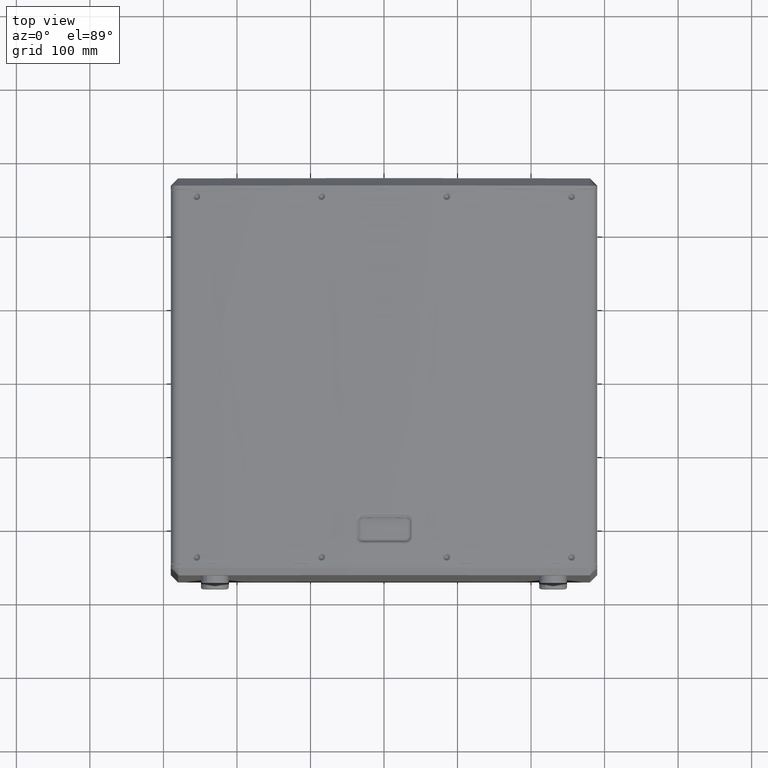
[diagram: clean part render]
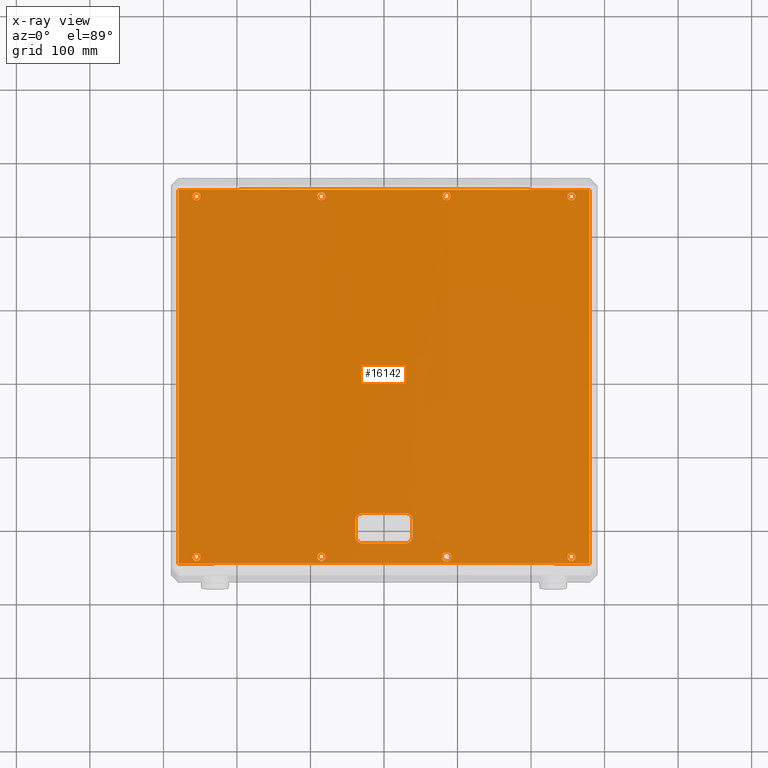
[diagram: x-ray — body ghosted, one internal face saturated and labeled with its STEP entity id]
A machine part, top view, then the same camera in x-ray: the body is ghosted and one INTERNAL B-rep face — a face not visible from any outside direction — is saturated and labeled: STEP entity #16142.
In plain terms, the highlighted cylindrical surface (partial cylindrical patch) has radius 2198.5 mm, axis along (0, 1, 0).
Its self-contained STEP definition (entity closure, byte-faithful):
#34 = CARTESIAN_POINT ( 'NONE',  ( -279.3340950639849893, -254.0000000000000000, 275.3795624213456108 ) ) ;
#36 = CARTESIAN_POINT ( 'NONE',  ( -260.3268800285135853, 244.4608726563989194, 277.7301864410150642 ) ) ;
#43 = CARTESIAN_POINT ( 'NONE',  ( -34.80979207764626437, -187.8718433520583631, 292.9218155614859711 ) ) ;
#55 = CARTESIAN_POINT ( 'NONE',  ( 260.3646415194411929, -244.7924834747101102, 277.7256829199714048 ) ) ;
#88 = VERTEX_POINT ( 'NONE', #21417 ) ;
#107 = CARTESIAN_POINT ( 'NONE',  ( -81.48492447339945954, -241.1864776031507347, 291.6868211943173606 ) ) ;
#185 = CARTESIAN_POINT ( 'NONE',  ( -251.0521626270619322, 241.4346151968067034, 278.8162372642985360 ) ) ;
#189 = CARTESIAN_POINT ( 'NONE',  ( 252.1657996077163943, -249.9539633695091254, 278.6879543285149907 ) ) ;
#236 = CARTESIAN_POINT ( 'NONE',  ( 84.34616463044783075, -251.6174447640952963, 291.5788540810252130 ) ) ;
#247 = CARTESIAN_POINT ( 'NONE',  ( -38.67980761024694658, -193.7304203794624016, 292.8571090528682248 ) ) ;
#267 = CARTESIAN_POINT ( 'NONE',  ( 260.3774925521325940, -245.5094407735608115, 277.7241501157028551 ) ) ;
#292 = VECTOR ( 'NONE', #18695, 1000.000000000000000 ) ;
#351 = ORIENTED_EDGE ( 'NONE', *, *, #14759, .T. ) ;
#370 = CARTESIAN_POINT ( 'NONE',  ( 81.11530650608675330, 248.9315648098216798, 291.7004838307651085 ) ) ;
#394 = CARTESIAN_POINT ( 'NONE',  ( -250.5925135867091456, 241.9790796994510913, 278.8690223287700292 ) ) ;
#448 = CARTESIAN_POINT ( 'NONE',  ( 87.24404055192181318, -251.3079253537539444, 291.4656507516115198 ) ) ;
#457 = CARTESIAN_POINT ( 'NONE',  ( -256.2667133325439295, -250.5593592061210018, 278.2105397676377265 ) ) ;
#463 = CARTESIAN_POINT ( 'NONE',  ( -30.33080384230719062, -186.0300759494355134, 292.9882538120044728 ) ) ;
#475 = CARTESIAN_POINT ( 'NONE',  ( 256.0934892797327507, -239.9002049481454151, 278.2308634763271016 ) ) ;
#502 = CARTESIAN_POINT ( 'NONE',  ( -82.18878006191772556, 249.8437473078088829, 291.6605895254492111 ) ) ;
#605 = CARTESIAN_POINT ( 'NONE',  ( 249.6060305593263422, -246.2346376739947118, 278.9819650984788950 ) ) ;
#678 = CARTESIAN_POINT ( 'NONE',  ( 260.0774012949206053, -247.0885916535247020, 277.7599243255857573 ) ) ;
#709 = CARTESIAN_POINT ( 'NONE',  ( -79.68572190108058351, 245.3316625283885344, 291.7527967869663144 ) ) ;
#782 = CARTESIAN_POINT ( 'NONE',  ( 79.68549619028176778, 245.1768019188508276, 291.7528049692976424 ) ) ;
#785 = EDGE_LOOP ( 'NONE', ( #41004, #14886 ) ) ;
#807 = CARTESIAN_POINT ( 'NONE',  ( -249.9618481146943338, 247.4196168549775336, 278.9412808442175447 ) ) ;
#840 = CARTESIAN_POINT ( 'NONE',  ( -37.63138739732533367, -221.9938777257074207, 292.8753359220421544 ) ) ;
#864 = CARTESIAN_POINT ( 'NONE',  ( 83.12570990007191085, -251.3387657007776852, 291.6253681838986722 ) ) ;
#874 = CARTESIAN_POINT ( 'NONE',  ( 254.3257687364871060, 239.8185961537341768, 278.4374563017203741 ) ) ;
#876 = CARTESIAN_POINT ( 'NONE',  ( -38.41174514462269940, -192.7847114773230146, 292.8618107579225125 ) ) ;
#894 = CARTESIAN_POINT ( 'NONE',  ( -80.00905870748874804, -247.0820418414197661, 291.7410465437702101 ) ) ;
#945 = AXIS2_PLACEMENT_3D ( 'NONE', #973, #36643, #20423 ) ;
#973 = CARTESIAN_POINT ( 'NONE',  ( 5.551115123125782702E-13, -254.0000000000000000, -1905.302604547234068 ) ) ;
#1042 = CARTESIAN_POINT ( 'NONE',  ( 249.6806162758368259, -246.5832524590017840, 278.9734430416859254 ) ) ;
#1070 = CARTESIAN_POINT ( 'NONE',  ( -32.23375153944046190, -226.4852252881780998, 292.9611039913531840 ) ) ;
#1091 = FACE_BOUND ( 'NONE', #24440, .T. ) ;
#1094 = CARTESIAN_POINT ( 'NONE',  ( -89.08493168597409806, -249.0624703818272394, 291.3917707592669331 ) ) ;
#1099 = EDGE_LOOP ( 'NONE', ( #11400, #30296 ) ) ;
#1150 = CARTESIAN_POINT ( 'NONE',  ( 87.32015136095370167, 240.2169851447448536, 291.4626410816323414 ) ) ;
#1223 = CARTESIAN_POINT ( 'NONE',  ( 82.98597695612879477, 250.2805680133146211, 291.6306393773084551 ) ) ;
#1358 = CARTESIAN_POINT ( 'NONE',  ( 86.47407556813530505, 239.9405599494862713, 291.4960921025556786 ) ) ;
#1439 = CARTESIAN_POINT ( 'NONE',  ( 81.49425706508009171, 249.3099152614712466, 291.6864606543962282 ) ) ;
#1442 = EDGE_CURVE ( 'NONE', #88, #22761, #19153, .T. ) ;
#1496 = CARTESIAN_POINT ( 'NONE',  ( -29.68384259720777152, -227.0425185317911883, 292.9970910783115983 ) ) ;
#1526 = CARTESIAN_POINT ( 'NONE',  ( -90.23421640941312205, -247.2619150543661419, 291.3448503827655145 ) ) ;
#1554 = CARTESIAN_POINT ( 'NONE',  ( 35.07321141485983418, -224.9292477587488293, 292.9176261533617094 ) ) ;
#1574 = CARTESIAN_POINT ( 'NONE',  ( 88.56023807129956538, 249.5279948078653263, 291.4129784997995785 ) ) ;
#1701 = CARTESIAN_POINT ( 'NONE',  ( -90.18247770899809268, 243.0887911079076673, 291.3469800497760502 ) ) ;
#1804 = CARTESIAN_POINT ( 'NONE',  ( 89.74747501433543562, 242.2720693139354182, 291.3647965480363951 ) ) ;
#1831 = CARTESIAN_POINT ( 'NONE',  ( -255.5855068208762191, -239.8185961537360811, 278.2903746279412189 ) ) ;
#1933 = EDGE_CURVE ( 'NONE', #31861, #17895, #42029, .T. ) ;
#2020 = CARTESIAN_POINT ( 'NONE',  ( -29.02640564534486600, -185.9488085850920811, 293.0057718584309896 ) ) ;
#2038 = CARTESIAN_POINT ( 'NONE',  ( -254.3257687364871060, -250.6814038462639189, 278.4374563017206015 ) ) ;
#2063 = CARTESIAN_POINT ( 'NONE',  ( -260.2642263382108467, 244.1086549054143404, 277.7376569880168518 ) ) ;
#2156 = DIRECTION ( 'NONE',  ( 0.1270566727605117185, 0.0000000000000000000, 0.9918954591624200567 ) ) ;
#2268 = CARTESIAN_POINT ( 'NONE',  ( -257.2697691979950605, 250.1992198321893000, 278.0925820715065129 ) ) ;
#2371 = CARTESIAN_POINT ( 'NONE',  ( -251.1646489025644655, 249.1790850860797661, 278.8033095447618734 ) ) ;
#2400 = CARTESIAN_POINT ( 'NONE',  ( 38.86978138049012443, -218.3070664341422855, 292.8537607144437516 ) ) ;
#2457 = VERTEX_POINT ( 'NONE', #27709 ) ;
#2473 = CARTESIAN_POINT ( 'NONE',  ( -256.6063267630880205, 250.4622323522970930, 278.1706544388167117 ) ) ;
#2518 = CARTESIAN_POINT ( 'NONE',  ( 259.8672992171090073, 242.9004225832289308, 277.7849491206404196 ) ) ;
#2697 = CARTESIAN_POINT ( 'NONE',  ( -254.3257687364871060, -250.6814038462639189, 278.4374563017206015 ) ) ;
#2716 = CARTESIAN_POINT ( 'NONE',  ( 259.4328403162303971, 248.3589082602701978, 277.8366260796927349 ) ) ;
#2764 = CARTESIAN_POINT ( 'NONE',  ( -252.9480010972778814, 250.3430470308545921, 278.5975021175799498 ) ) ;
#2768 = CARTESIAN_POINT ( 'NONE',  ( 78.80286953722385590, -246.1237704574640190, 291.7846410536642452 ) ) ;
#2866 = CARTESIAN_POINT ( 'NONE',  ( 249.9110284408511689, 247.2732835650986090, 278.9470911134856124 ) ) ;
#3010 = EDGE_LOOP ( 'NONE', ( #40977, #3489 ) ) ;
#3053 = CARTESIAN_POINT ( 'NONE',  ( 257.9045250501924329, -249.8436251315555694, 278.0176943841843240 ) ) ;
#3092 = CARTESIAN_POINT ( 'NONE',  ( 249.5248308462712998, 245.5353625337616847, 278.9912425647774512 ) ) ;
#3108 = CARTESIAN_POINT ( 'NONE',  ( -80.21297665075030636, -242.9012158356192117, 291.7336169666447745 ) ) ;
#3188 = CARTESIAN_POINT ( 'NONE',  ( 78.97044509093231568, -246.9436892478060486, 291.7786242268826413 ) ) ;
#3232 = CARTESIAN_POINT ( 'NONE',  ( -257.7417239594353191, 249.9557988270713622, 278.0369370959599564 ) ) ;
#3238 = CARTESIAN_POINT ( 'NONE',  ( -32.23609724900322959, -186.4989320787011309, 292.9611288290827247 ) ) ;
#3253 = CARTESIAN_POINT ( 'NONE',  ( 258.8491769695114613, -241.4376434801663152, 277.9058990634831616 ) ) ;
#3301 = CARTESIAN_POINT ( 'NONE',  ( -85.07132164422706921, -239.7706189221861734, 291.5508832296665105 ) ) ;
#3434 = CARTESIAN_POINT ( 'NONE',  ( -258.2050775229939177, 240.8562561290559927, 277.9821827077853413 ) ) ;
#3456 = CARTESIAN_POINT ( 'NONE',  ( 258.4593845722234846, -241.0710952346391878, 277.9520796398821290 ) ) ;
#3489 = ORIENTED_EDGE ( 'NONE', *, *, #35071, .F. ) ;
#3531 = B_SPLINE_CURVE_WITH_KNOTS ( 'NONE', 3,
 ( #23135, #38912, #463, #19302, #3238, #10416, #20114, #43, #33117, #26311, #16122, #36134, #10199, #4082, #29291, #16977, #876, #25906, #247, #13812, #38702, #33972 ),
 .UNSPECIFIED., .F., .F.,
 ( 4, 2, 2, 2, 2, 2, 2, 2, 2, 2, 4 ),
 ( 3.469446951953614189E-18, 0.001950756996703716627, 0.003901513993407440192, 0.005852270990111163758, 0.006827649488462993015, 0.007803027986814823139, 0.009753784983518424406, 0.01170454198022202394, 0.01267992047857386187, 0.01365529897692570153, 0.01560605597362937913 ),
 .UNSPECIFIED. ) ;
#3560 = CARTESIAN_POINT ( 'NONE',  ( 80.56442304609402072, 248.2299807988092653, 291.7207577384262436 ) ) ;
#3562 = VERTEX_POINT ( 'NONE', #34109 ) ;
#3588 = CARTESIAN_POINT ( 'NONE',  ( -249.6071942931722276, 244.2570836875250961, 278.9818321294283123 ) ) ;
#3591 = CARTESIAN_POINT ( 'NONE',  ( 78.91285479885678456, -243.8284943593393166, 291.7806922215560235 ) ) ;
#3792 = CARTESIAN_POINT ( 'NONE',  ( -254.3257687364870492, 250.6814038462638621, 278.4374563017205446 ) ) ;
#3807 = CARTESIAN_POINT ( 'NONE',  ( -249.5180961668665702, 245.3314032764959904, 278.9920116829220547 ) ) ;
#3854 = CARTESIAN_POINT ( 'NONE',  ( 90.89311348932831436, -242.3847361906580886, 291.3176899752971281 ) ) ;
#3905 = CARTESIAN_POINT ( 'NONE',  ( -79.81435470190831438, 246.3933967135043019, 291.7481276354089346 ) ) ;
#3932 = EDGE_CURVE ( 'NONE', #9626, #26313, #18222, .T. ) ;
#4082 = CARTESIAN_POINT ( 'NONE',  ( -37.63045750558435287, -191.0039311192295486, 292.8753522863481749 ) ) ;
#4281 = CARTESIAN_POINT ( 'NONE',  ( 84.77037223941603372, -251.6571506645910574, 291.5625275257068552 ) ) ;
#4292 = CARTESIAN_POINT ( 'NONE',  ( 251.9986980279887518, 240.6508529523090942, 278.7072406977597439 ) ) ;
#4315 = CARTESIAN_POINT ( 'NONE',  ( 38.41174514462265677, -220.2152885226770707, 292.8618107579225125 ) ) ;
#4352 = VERTEX_POINT ( 'NONE', #4850 ) ;
#4423 = CARTESIAN_POINT ( 'NONE',  ( 84.89556936073466886, 250.7151095207971139, 291.5576605046150007 ) ) ;
#4454 = CARTESIAN_POINT ( 'NONE',  ( 249.5330057246725346, -245.5262218898207038, 278.9903082884255809 ) ) ;
#4477 = CARTESIAN_POINT ( 'NONE',  ( -37.09212531827128601, -222.8115483403416590, 292.8844795200371323 ) ) ;
#4504 = CARTESIAN_POINT ( 'NONE',  ( -90.50302879341239759, -244.0965355909580410, 291.3337926154599700 ) ) ;
#4509 = CARTESIAN_POINT ( 'NONE',  ( 254.1711967330655852, 250.6726713977742236, 278.4554816312646039 ) ) ;
#4549 = CARTESIAN_POINT ( 'NONE',  ( 88.81493615614742509, 241.1885258221210506, 291.4026951695921070 ) ) ;
#4699 = CARTESIAN_POINT ( 'NONE',  ( -87.65951185714045835, -240.3876596381377055, 291.4491074407114297 ) ) ;
#4702 = EDGE_LOOP ( 'NONE', ( #12238, #5826, #15873, #42062, #40597, #39212, #9883, #32677, #39953 ) ) ;
#4752 = CARTESIAN_POINT ( 'NONE',  ( 89.21545069585381782, 248.9226121020542450, 291.3864727789982680 ) ) ;
#4780 = AXIS2_PLACEMENT_3D ( 'NONE', #28881, #35274, #32063 ) ;
#4850 = CARTESIAN_POINT ( 'NONE',  ( -5.721268361538913851E-13, -185.7573593128803680, 293.1973954527661022 ) ) ;
#4865 = CARTESIAN_POINT ( 'NONE',  ( -90.55989370365792013, 244.4618521726499125, 291.3314470533477447 ) ) ;
#4911 = CARTESIAN_POINT ( 'NONE',  ( -84.87977205464383701, -250.7233069241099770, 291.5582928628417676 ) ) ;
#4957 = CARTESIAN_POINT ( 'NONE',  ( 90.09535659259478280, 242.8963042422080321, 291.3505558371156212 ) ) ;
#4986 = CARTESIAN_POINT ( 'NONE',  ( -254.8725749837639682, -239.7705700995489622, 278.3737330690798899 ) ) ;
#5026 = CARTESIAN_POINT ( 'NONE',  ( -260.3859161221851082, -245.5202231866876730, 277.7231457371138958 ) ) ;
#5081 = CARTESIAN_POINT ( 'NONE',  ( -84.69855088546361799, 250.7020887674941036, 291.5652651106776716 ) ) ;
#5174 = CARTESIAN_POINT ( 'NONE',  ( 87.97092749090266750, 249.9382670805784699, 291.4366585645803411 ) ) ;
#5270 = CARTESIAN_POINT ( 'NONE',  ( 256.2895583061610978, 250.5624997540973311, 278.2078779082634696 ) ) ;
#5277 = CARTESIAN_POINT ( 'NONE',  ( -90.09636134713673528, 247.6018531880758360, 291.3505146955628788 ) ) ;
#5374 = LINE ( 'NONE', #9175, #292 ) ;
#5381 = CARTESIAN_POINT ( 'NONE',  ( 88.26190430198283821, 240.7393726999621606, 291.4249990200580669 ) ) ;
#5411 = CARTESIAN_POINT ( 'NONE',  ( -253.8167589421247499, -239.8914406101505108, 278.4967043415314265 ) ) ;
#5414 = ORIENTED_EDGE ( 'NONE', *, *, #34841, .F. ) ;
#5442 = CARTESIAN_POINT ( 'NONE',  ( -260.2255715036760648, 246.5966818851964888, 277.7422676488006346 ) ) ;
#5493 = CARTESIAN_POINT ( 'NONE',  ( 259.5222725790230811, 242.2762011166078651, 277.8259922645520987 ) ) ;
#5647 = CARTESIAN_POINT ( 'NONE',  ( -255.9369583830203965, 239.8599959107631321, 278.2492378746676422 ) ) ;
#5698 = CARTESIAN_POINT ( 'NONE',  ( 259.6237637242683149, 248.0592599073822839, 277.8139241550787801 ) ) ;
#5800 = CARTESIAN_POINT ( 'NONE',  ( 85.94755908033654634, 239.8365126132272280, 291.5167549465418801 ) ) ;
#5826 = ORIENTED_EDGE ( 'NONE', *, *, #24036, .T. ) ;
#5829 = CARTESIAN_POINT ( 'NONE',  ( -252.6197882056862625, -250.1987315230134072, 278.6354875554381465 ) ) ;
#5862 = CARTESIAN_POINT ( 'NONE',  ( -260.3259490644887251, -244.4543662348442581, 277.7302974627064032 ) ) ;
#5874 = CARTESIAN_POINT ( 'NONE',  ( -80.76772212346645574, -241.9774356282816257, 291.7132985179141542 ) ) ;
#5890 = ORIENTED_EDGE ( 'NONE', *, *, #12380, .F. ) ;
#5906 = CARTESIAN_POINT ( 'NONE',  ( 260.1270732568129347, 246.9122129982136755, 277.7540044555466920 ) ) ;
#5950 = CARTESIAN_POINT ( 'NONE',  ( 79.62842145526667537, -248.4840516952724272, 291.7548763808663352 ) ) ;
#6044 = EDGE_LOOP ( 'NONE', ( #39976, #13980 ) ) ;
#6078 = CARTESIAN_POINT ( 'NONE',  ( -79.77444556136865117, -244.2636493449340094, 291.7495772477531091 ) ) ;
#6102 = CARTESIAN_POINT ( 'NONE',  ( 255.9403666131690898, 250.6396026117212443, 278.2488389476523025 ) ) ;
#6129 = CARTESIAN_POINT ( 'NONE',  ( 34.00279375258351422, -187.3217683084965586, 292.9344970283420366 ) ) ;
#6156 = CARTESIAN_POINT ( 'NONE',  ( -87.00253395005258028, -240.1010467258915355, 291.4752263254939635 ) ) ;
#6157 = CARTESIAN_POINT ( 'NONE',  ( 79.73683247826704701, -248.6628309611697034, 291.7509453637819092 ) ) ;
#6207 = CARTESIAN_POINT ( 'NONE',  ( -257.7404204755611090, -249.9566425572108415, 278.0370910832292566 ) ) ;
#6367 = CARTESIAN_POINT ( 'NONE',  ( -249.6830294501963863, 243.9083167557524803, 278.9731671370393542 ) ) ;
#6371 = CARTESIAN_POINT ( 'NONE',  ( 255.4099855051598524, -250.7020796394776028, 278.3109190722867083 ) ) ;
#6436 = VERTEX_POINT ( 'NONE', #30926 ) ;
#6495 = CARTESIAN_POINT ( 'NONE',  ( -79.95222416055250392, -246.9130551142682179, 291.7431150965936695 ) ) ;
#6572 = CARTESIAN_POINT ( 'NONE',  ( 81.22624313104046223, -240.1775252190456911, 291.6964095116987323 ) ) ;
#6616 = CARTESIAN_POINT ( 'NONE',  ( -258.8564095440955839, 249.0672438431794831, 277.9050498998957437 ) ) ;
#6617 = CARTESIAN_POINT ( 'NONE',  ( -255.7413031361492983, -250.6637109442857536, 278.2721404362638964 ) ) ;
#6659 = CARTESIAN_POINT ( 'NONE',  ( -81.09529786019186304, 248.9224996512029691, 291.7012306082947362 ) ) ;
#6737 = CARTESIAN_POINT ( 'NONE',  ( 79.85391206371593853, 243.9349168448471517, 291.7466905449909405 ) ) ;
#6816 = CARTESIAN_POINT ( 'NONE',  ( 91.55167420598988315, -244.7993178420397555, 291.2903347461360681 ) ) ;
#6840 = CARTESIAN_POINT ( 'NONE',  ( 258.9907548403000987, -248.9227808586958588, 277.8891158606786576 ) ) ;
#6868 = CARTESIAN_POINT ( 'NONE',  ( 279.3340950639852167, 254.0000000000000000, 275.3795624213465771 ) ) ;
#6948 = CARTESIAN_POINT ( 'NONE',  ( 80.45487431978183679, 242.4465438109645277, 291.7247712289476453 ) ) ;
#6970 = CARTESIAN_POINT ( 'NONE',  ( -249.8460258989322540, 243.3998337035613417, 278.9545269125899267 ) ) ;
#6974 = CARTESIAN_POINT ( 'NONE',  ( 252.6228255436542725, -240.2996897156006924, 278.6351364410558062 ) ) ;
#7033 = CARTESIAN_POINT ( 'NONE',  ( 250.0412589855538954, 242.9240421719925678, 278.9321871663382240 ) ) ;
#7185 = CARTESIAN_POINT ( 'NONE',  ( 250.4771968329373522, -242.1411290789628197, 278.8822487612424084 ) ) ;
#7236 = CARTESIAN_POINT ( 'NONE',  ( 90.72348651930137464, -248.4328725867253524, 291.3247084656488823 ) ) ;
#7248 = CARTESIAN_POINT ( 'NONE',  ( 252.8037823634818437, 250.2827536209943275, 278.6141977114862129 ) ) ;
#7359 = AXIS2_PLACEMENT_3D ( 'NONE', #37170, #37817, #2156 ) ;
#7404 = CARTESIAN_POINT ( 'NONE',  ( 250.2863842085093609, -242.4409646140204018, 278.9041169436411565 ) ) ;
#7443 = ORIENTED_EDGE ( 'NONE', *, *, #19852, .F. ) ;
#7449 = CARTESIAN_POINT ( 'NONE',  ( 88.01251600204939507, -250.9849536843052817, 291.4349949381899592 ) ) ;
#7454 = CARTESIAN_POINT ( 'NONE',  ( -90.01206739376999622, -247.7526639357197951, 291.3539651840856095 ) ) ;
#7497 = VERTEX_POINT ( 'NONE', #29029 ) ;
#7587 = CARTESIAN_POINT ( 'NONE',  ( 31.61086896243134348, -186.3174644105174877, 292.9701492255022686 ) ) ;
#7671 = CARTESIAN_POINT ( 'NONE',  ( 91.55536253385808720, -245.6447295138364666, 291.2901810174233788 ) ) ;
#7700 = CARTESIAN_POINT ( 'NONE',  ( 30.33080384230715509, -226.9699240505645150, 292.9882538120045865 ) ) ;
#7725 = CARTESIAN_POINT ( 'NONE',  ( 90.62486677673732061, 245.3317448665758889, 291.3287674240773981 ) ) ;
#7765 = B_SPLINE_CURVE_WITH_KNOTS ( 'NONE', 3,
 ( #32510, #32719, #29111, #16566, #16351, #475, #29515, #13398, #22931, #16139, #10213, #3456, #35729, #3253, #19316, #26330, #35951, #39340, #29305, #16761, #22298, #55, #19110, #23149, #267, #36149, #32932, #678, #13608, #35516, #12979, #6840, #41911, #13201, #38924, #3053, #38513, #15941, #9822, #9404, #35305, #19724 ),
 .UNSPECIFIED., .F., .F.,
 ( 4, 2, 2, 2, 2, 2, 2, 2, 2, 2, 2, 2, 2, 2, 2, 2, 2, 2, 2, 2, 4 ),
 ( 0.01316576898051859817, 0.01423637708970291668, 0.01477168114429507420, 0.01530698519888722998, 0.01637759330807167860, 0.01744820141725612894, 0.01798350547184834544, 0.01851880952644056194, 0.01958941763562510249, 0.02066002574480964304, 0.02173063385399418360, 0.02226593790858648683, 0.02280124196317878660, 0.02387185007236337919, 0.02494245818154797179, 0.02601306629073256091, 0.02708367439991715003, 0.02761897845450939429, 0.02815428250910163507, 0.02922489061828619644, 0.03029549872747075781 ),
 .UNSPECIFIED. ) ;
#7812 = CARTESIAN_POINT ( 'NONE',  ( 29.02640564534486245, -185.9488085850921379, 293.0057718584309896 ) ) ;
#7837 = CARTESIAN_POINT ( 'NONE',  ( 251.9992828730335361, -240.6503954970317238, 278.7071733452943363 ) ) ;
#7884 = CARTESIAN_POINT ( 'NONE',  ( -88.96757304119498144, -241.3195212298203955, 291.3965319185216458 ) ) ;
#7908 = CARTESIAN_POINT ( 'NONE',  ( 33.43169534920678387, -225.9903082559181087, 292.9432709611238010 ) ) ;
#7929 = CARTESIAN_POINT ( 'NONE',  ( -82.04919141405510175, 240.7392632917026276, 291.6658199556858904 ) ) ;
#8034 = CARTESIAN_POINT ( 'NONE',  ( -87.95888244434556213, 249.9556480599071335, 291.4371582685573685 ) ) ;
#8055 = CARTESIAN_POINT ( 'NONE',  ( -35.58742906328242128, -224.5200499751794325, 292.9093943032790435 ) ) ;
#8084 = CARTESIAN_POINT ( 'NONE',  ( -90.17749849346193969, -243.0777195866012050, 291.3471843974058402 ) ) ;
#8097 = VERTEX_POINT ( 'NONE', #34 ) ;
#8141 = CARTESIAN_POINT ( 'NONE',  ( -84.01075266861757029, 239.9002287618220066, 291.5916747781189429 ) ) ;
#8170 = CARTESIAN_POINT ( 'NONE',  ( -254.1647815675673883, -239.8282038932335922, 278.4562284640859957 ) ) ;
#8216 = CARTESIAN_POINT ( 'NONE',  ( 81.23713877796042482, 249.0614630821629021, 291.6959830338532811 ) ) ;
#8251 = CARTESIAN_POINT ( 'NONE',  ( -86.49844293765326597, 239.9376806230977195, 291.4951522965428694 ) ) ;
#8319 = CARTESIAN_POINT ( 'NONE',  ( 38.93360476395066172, -217.6575274365200414, 292.8526275553772962 ) ) ;
#8327 = VERTEX_POINT ( 'NONE', #27788 ) ;
#8342 = CARTESIAN_POINT ( 'NONE',  ( -84.54285632093520064, 239.8132137597796429, 291.5712624372902155 ) ) ;
#8370 = CARTESIAN_POINT ( 'NONE',  ( -251.7089995233283162, -249.6461875169989639, 278.7406422008865547 ) ) ;
#8455 = CARTESIAN_POINT ( 'NONE',  ( 256.7809371459180170, 240.0877990697022994, 278.1501474061639669 ) ) ;
#8480 = EDGE_CURVE ( 'NONE', #2457, #19932, #11976, .T. ) ;
#8556 = CARTESIAN_POINT ( 'NONE',  ( 90.61863306916389149, 244.9713739435032096, 291.3290248084044265 ) ) ;
#8565 = EDGE_CURVE ( 'NONE', #38162, #10982, #31222, .T. ) ;
#8578 = CARTESIAN_POINT ( 'NONE',  ( -250.3969981085335519, -242.2780974816303967, 278.8914353179305863 ) ) ;
#8655 = CARTESIAN_POINT ( 'NONE',  ( -89.73840825863140935, 248.2258646688149497, 291.3651624340963053 ) ) ;
#8710 = CARTESIAN_POINT ( 'NONE',  ( 89.03058569370017494, -240.1359663025666862, 291.3939897704582904 ) ) ;
#8783 = CARTESIAN_POINT ( 'NONE',  ( -250.6000614416254564, -241.9834760524455533, 278.8681464815693403 ) ) ;
#8811 = CARTESIAN_POINT ( 'NONE',  ( -259.9510591928035410, 243.0868421690830417, 277.7749761879719017 ) ) ;
#8819 = CARTESIAN_POINT ( 'NONE',  ( -258.9894681511509589, -241.5758950243276217, 277.8892684427686390 ) ) ;
#8868 = CARTESIAN_POINT ( 'NONE',  ( 260.1723249474706563, 243.7381604792536791, 277.7486120671806020 ) ) ;
#8906 = B_SPLINE_CURVE_WITH_KNOTS ( 'NONE', 3,
 ( #19964, #16375, #33387, #36394, #17248, #16591, #502, #29952, #35761, #13424, #6659, #29336, #13227, #26361, #26151, #39370, #3905, #39166, #16788, #709, #10041, #10241, #13637, #24451, #37445, #33595, #40225, #30612, #30836, #7929, #40862, #17863, #26998, #36805, #8141, #27201, #8342, #14681, #11739, #27421 ),
 .UNSPECIFIED., .F., .F.,
 ( 4, 2, 2, 2, 2, 2, 2, 2, 2, 2, 2, 2, 2, 2, 2, 2, 2, 2, 2, 4 ),
 ( 0.01346092938763281295, 0.01453156821237418586, 0.01560220703711555877, 0.01613752644948620793, 0.01667284586185685535, 0.01774348468659820571, 0.01881412351133955607, 0.01988476233608090643, 0.02042008174845161977, 0.02095540116082233659, 0.02202603998556376674, 0.02309667881030519690, 0.02416731763504662706, 0.02523795645978805721, 0.02630859528452948737, 0.02737923410927091405, 0.02844987293401234421, 0.02898519234638306449, 0.02952051175875378131, 0.03059115058349522187 ),
 .UNSPECIFIED. ) ;
#8947 = CARTESIAN_POINT ( 'NONE',  ( 38.93360476395037750, -217.0000000000000568, 292.8526275553770120 ) ) ;
#8995 = CARTESIAN_POINT ( 'NONE',  ( -249.8315902063678493, -247.0852565261688483, 278.9561795628063692 ) ) ;
#9004 = CARTESIAN_POINT ( 'NONE',  ( -38.93360476395154279, -217.0000000000000284, 292.8526275553771256 ) ) ;
#9027 = CARTESIAN_POINT ( 'NONE',  ( -255.5855068208762191, -239.8185961537360811, 278.2903746279412189 ) ) ;
#9044 = CARTESIAN_POINT ( 'NONE',  ( -82.64942049126277368, -250.1113154269807808, 291.6433091644880164 ) ) ;
#9136 = CARTESIAN_POINT ( 'NONE',  ( -87.17187768979373175, -240.1652168215055383, 291.4685124982582352 ) ) ;
#9137 = CARTESIAN_POINT ( 'NONE',  ( 79.70055223862750893, -241.8954446584893674, 291.7522617363248969 ) ) ;
#9175 = CARTESIAN_POINT ( 'NONE',  ( -279.3340950639851030, 836.0843591904334744, 275.3795624213454971 ) ) ;
#9251 = CARTESIAN_POINT ( 'NONE',  ( -80.56069314812403093, -242.2760199808168409, 291.7208944137237268 ) ) ;
#9280 = CARTESIAN_POINT ( 'NONE',  ( 256.9596174037699825, 250.3348484500279483, 278.1291053809123923 ) ) ;
#9305 = CARTESIAN_POINT ( 'NONE',  ( 36.48633218278676793, -189.4149015433708598, 292.8946204001924229 ) ) ;
#9329 = CARTESIAN_POINT ( 'NONE',  ( 78.75481915274254163, -244.8640951946289306, 291.7863623506790987 ) ) ;
#9404 = CARTESIAN_POINT ( 'NONE',  ( 256.2847263935672117, -250.5640382480312951, 278.2084457283176562 ) ) ;
#9419 = VERTEX_POINT ( 'NONE', #9810 ) ;
#9459 = CARTESIAN_POINT ( 'NONE',  ( -81.34531615122607207, -249.1821505241838679, 291.6919933905818993 ) ) ;
#9538 = B_SPLINE_CURVE_WITH_KNOTS ( 'NONE', 3,
 ( #31662, #41478, #38287, #35075, #31869, #25488, #35919, #864, #33328, #236, #4281, #10397, #23768, #13172, #13796, #448, #29281, #7449, #16731, #36121, #26101, #23350, #14013, #36338, #7236, #39750, #26509, #39112, #17181, #9984, #39531, #7671, #6816, #10617, #10832, #20102, #26732, #16539, #3854, #22901, #19693, #23554, #29897 ),
 .UNSPECIFIED., .F., .F.,
 ( 4, 2, 2, 2, 2, 2, 2, 2, 1, 2, 2, 2, 2, 2, 2, 2, 2, 2, 2, 2, 2, 4 ),
 ( 0.04003506377717849091, 0.04128626605769419172, 0.04191186719795205601, 0.04253746833820992723, 0.04378867061872572519, 0.04503987289924152315, 0.04629107517975732805, 0.04691667632001521315, 0.04754227746027309826, 0.04816787860053098336, 0.04879347974078887540, 0.05004468202130464560, 0.05129588430182041581, 0.05254708658233619295, 0.05317268772259407805, 0.05379828886285196315, 0.05504949114336774030, 0.05630069342388351744, 0.05692629456414144418, 0.05755189570439937785, 0.05880309798491530071, 0.06005430026543123745 ),
 .UNSPECIFIED. ) ;
#9542 = CARTESIAN_POINT ( 'NONE',  ( 80.89862103081372879, -240.4498250859107316, 291.7084899386373422 ) ) ;
#9592 = CARTESIAN_POINT ( 'NONE',  ( -260.2282028303829406, -246.5859432483662772, 277.7419539347393425 ) ) ;
#9626 = VERTEX_POINT ( 'NONE', #14600 ) ;
#9643 = VERTEX_POINT ( 'NONE', #31372 ) ;
#9646 = CARTESIAN_POINT ( 'NONE',  ( 250.4739447498272682, 242.1457879884955275, 278.8826217310389097 ) ) ;
#9662 = CARTESIAN_POINT ( 'NONE',  ( -79.74285534109195339, -246.0458916875819853, 291.7507238561211693 ) ) ;
#9747 = CARTESIAN_POINT ( 'NONE',  ( 252.7995447480000450, -250.2809468695091368, 278.6146882835658403 ) ) ;
#9801 = CARTESIAN_POINT ( 'NONE',  ( -260.0072448496659945, 247.2756880095193424, 277.7682817758606575 ) ) ;
#9810 = CARTESIAN_POINT ( 'NONE',  ( 279.3340950639855578, -254.0000000000000000, 275.3795624213466340 ) ) ;
#9822 = CARTESIAN_POINT ( 'NONE',  ( 256.9660631409574876, -250.3419128872234580, 278.1283675817008998 ) ) ;
#9883 = ORIENTED_EDGE ( 'NONE', *, *, #36339, .T. ) ;
#9936 = CARTESIAN_POINT ( 'NONE',  ( -249.6867474499179593, 246.5710293286273611, 278.9727399406687596 ) ) ;
#9941 = CARTESIAN_POINT ( 'NONE',  ( 82.28602257967669686, -239.5097515478254593, 291.6569785853935173 ) ) ;
#9984 = CARTESIAN_POINT ( 'NONE',  ( 91.39666895156807414, -246.6752206813230544, 291.2967900816375959 ) ) ;
#9992 = CARTESIAN_POINT ( 'NONE',  ( -259.1999710615943968, 248.6607159859684941, 277.8642782863526008 ) ) ;
#9993 = CARTESIAN_POINT ( 'NONE',  ( -259.3214068089924922, -248.5161019335112940, 277.8498664665248157 ) ) ;
#10041 = CARTESIAN_POINT ( 'NONE',  ( -79.69188625159839034, 244.9722288291633561, 291.7525734154610859 ) ) ;
#10135 = CARTESIAN_POINT ( 'NONE',  ( -255.5855068208761054, 239.8185961537361379, 278.2903746279411621 ) ) ;
#10199 = CARTESIAN_POINT ( 'NONE',  ( -36.90601723006949442, -189.9070493509618416, 292.8876345206577980 ) ) ;
#10213 = CARTESIAN_POINT ( 'NONE',  ( 258.0433759370168332, -240.7395119875581031, 278.0013010345734301 ) ) ;
#10241 = CARTESIAN_POINT ( 'NONE',  ( -79.77542619294793269, 244.2569455893699910, 291.7495416529331465 ) ) ;
#10343 = CARTESIAN_POINT ( 'NONE',  ( -249.8324568786830184, 247.0881646390931792, 278.9560804645523717 ) ) ;
#10397 = CARTESIAN_POINT ( 'NONE',  ( 85.60527446016165243, -251.6529361462748113, 291.5301522897696600 ) ) ;
#10414 = CARTESIAN_POINT ( 'NONE',  ( 252.1729290218729886, 249.9480002824623170, 278.6871130714973219 ) ) ;
#10416 = CARTESIAN_POINT ( 'NONE',  ( -33.43169534920680519, -187.0096917440819482, 292.9432709611238579 ) ) ;
#10432 = CARTESIAN_POINT ( 'NONE',  ( -82.35092184214455813, -240.5450727892948919, 291.6545356934081497 ) ) ;
#10545 = CARTESIAN_POINT ( 'NONE',  ( 80.07239017660410241, 247.2751724162833682, 291.7387410754554367 ) ) ;
#10617 = CARTESIAN_POINT ( 'NONE',  ( 91.50833543193145658, -244.3826883708492232, 291.2921422027778249 ) ) ;
#10618 = EDGE_CURVE ( 'NONE', #10982, #38162, #7765, .T. ) ;
#10630 = CARTESIAN_POINT ( 'NONE',  ( 249.5742213646975074, 244.4604114037648799, 278.9855996121935959 ) ) ;
#10652 = CARTESIAN_POINT ( 'NONE',  ( 34.80979207764629990, -225.1281566479416369, 292.9218155614859143 ) ) ;
#10754 = CARTESIAN_POINT ( 'NONE',  ( 84.16763780049623733, 239.8600728278500185, 291.5856912983261964 ) ) ;
#10787 = CARTESIAN_POINT ( 'NONE',  ( 249.9002238754928840, -247.2701343402372629, 278.9483289129154286 ) ) ;
#10832 = CARTESIAN_POINT ( 'NONE',  ( 91.38381436035800220, -243.7694995399618278, 291.2973249344116766 ) ) ;
#10837 = CARTESIAN_POINT ( 'NONE',  ( -90.61904003454016276, -245.5207884335784172, 291.3290080107199174 ) ) ;
#10864 = CARTESIAN_POINT ( 'NONE',  ( 29.02640564534486245, -227.0511914149083168, 293.0057718584312738 ) ) ;
#10917 = B_SPLINE_CURVE_WITH_KNOTS ( 'NONE', 3,
 ( #37028, #20803, #11524, #34230, #33799, #5174, #27625, #14893, #1574, #23826, #4752, #21009, #24666, #34017, #37227, #37666, #11313, #7725, #8556, #20603, #24236, #14488, #4957, #1804, #40644, #21449, #34448, #4549, #17445, #5381, #18286, #1150, #30392, #1358, #14269, #5800, #18699, #19090, #28892, #12565 ),
 .UNSPECIFIED., .F., .F.,
 ( 4, 2, 2, 2, 2, 2, 2, 2, 2, 2, 2, 2, 2, 2, 2, 2, 2, 2, 2, 4 ),
 ( 0.01350682949000047740, 0.01457746086230658072, 0.01564809223461268578, 0.01618340792076573484, 0.01671872360691878737, 0.01778935497922488548, 0.01885998635153098360, 0.01993061772383708172, 0.02100124909614317983, 0.02207188046844927795, 0.02314251184075537954, 0.02421314321306147765, 0.02528377458536757577, 0.02581909027152062136, 0.02635440595767366695, 0.02742503732997975813, 0.02849566870228585277, 0.02903098438843886714, 0.02956630007459188497, 0.03063693144689794839 ),
 .UNSPECIFIED. ) ;
#10982 = VERTEX_POINT ( 'NONE', #30968 ) ;
#10993 = CARTESIAN_POINT ( 'NONE',  ( 253.6205210230905607, -239.9377680593316882, 278.5195027175940936 ) ) ;
#11022 = CARTESIAN_POINT ( 'NONE',  ( -38.93360476395154279, -217.0000000000000284, 292.8526275553771256 ) ) ;
#11052 = CARTESIAN_POINT ( 'NONE',  ( -89.54739604344551651, -248.5168756585060237, 291.3729671789486133 ) ) ;
#11058 =( BOUNDED_CURVE ( )  B_SPLINE_CURVE ( 3, ( #32089, #22918, #35939, #32502 ),
 .UNSPECIFIED., .F., .F. ) 
 B_SPLINE_CURVE_WITH_KNOTS ( ( 4, 4 ),
 ( 6.269982100903097155, 6.283185307179586232 ),
 .UNSPECIFIED. ) 
 CURVE ( )  GEOMETRIC_REPRESENTATION_ITEM ( )  RATIONAL_B_SPLINE_CURVE ( ( 1.000000000000000000, 0.9999854729980937051, 0.9999854729980937051, 1.000000000000000000 ) ) 
 REPRESENTATION_ITEM ( '' )  );
#11059 = CARTESIAN_POINT ( 'NONE',  ( 253.1328109224212426, 250.4129777424607823, 278.5760890081164689 ) ) ;
#11188 = CARTESIAN_POINT ( 'NONE',  ( 84.36047956390808622, 250.6719234442751940, 291.5782950308023942 ) ) ;
#11220 = CARTESIAN_POINT ( 'NONE',  ( -85.78922758010311611, 239.8185961537363937, 291.5229366442388255 ) ) ;
#11269 = CARTESIAN_POINT ( 'NONE',  ( -90.46020199126076022, -246.5868880272242336, 291.3355572189002487 ) ) ;
#11295 = CARTESIAN_POINT ( 'NONE',  ( 35.81337523163831094, -224.2905547237074870, 292.9056894826726989 ) ) ;
#11313 = CARTESIAN_POINT ( 'NONE',  ( 90.56810423210616534, 246.0416199490477993, 291.3311085015914728 ) ) ;
#11338 = CARTESIAN_POINT ( 'NONE',  ( -251.9993187454030021, -249.8494944897122139, 278.7071689844683533 ) ) ;
#11400 = ORIENTED_EDGE ( 'NONE', *, *, #31506, .F. ) ;
#11444 = CARTESIAN_POINT ( 'NONE',  ( -36.89714096951298217, -223.0778988084426544, 292.8877632760341498 ) ) ;
#11477 = CARTESIAN_POINT ( 'NONE',  ( -87.32129536456248786, -250.2822612403635105, 291.4625951471324470 ) ) ;
#11524 = CARTESIAN_POINT ( 'NONE',  ( 86.49159304019586614, 250.5643515950503115, 291.4954226612873072 ) ) ;
#11554 = CARTESIAN_POINT ( 'NONE',  ( -249.6062446157250463, -244.2638992697710592, 278.9819406400214916 ) ) ;
#11634 = CARTESIAN_POINT ( 'NONE',  ( 258.7428069851019359, 249.1818313311917450, 277.9185211013427192 ) ) ;
#11643 = CARTESIAN_POINT ( 'NONE',  ( -86.30041796273700072, 250.6086903715115000, 291.5029412314944466 ) ) ;
#11692 = CARTESIAN_POINT ( 'NONE',  ( -86.29811375363762238, -250.6002606881086479, 291.5030119739666361 ) ) ;
#11739 = CARTESIAN_POINT ( 'NONE',  ( -85.43493702332503403, 239.7771133586547023, 291.5367722049767849 ) ) ;
#11775 = CARTESIAN_POINT ( 'NONE',  ( -250.2873179921846827, -248.0610831143645498, 278.9040100615268329 ) ) ;
#11801 = CARTESIAN_POINT ( 'NONE',  ( -255.7455570238371081, 250.6719121788087534, 278.2716641173760763 ) ) ;
#11858 = CARTESIAN_POINT ( 'NONE',  ( 258.0376311071054261, 240.7460540320265068, 278.0019673275722880 ) ) ;
#11976 = B_SPLINE_CURVE_WITH_KNOTS ( 'NONE', 3,
 ( #24837, #37821, #8710, #21616, #34829, #12302, #16269, #22653, #31824, #13118, #38647, #38237, #12913, #25647, #29039, #35440, #22031, #9941, #32637, #6572, #9542, #39071, #35240, #9137, #35658, #22432, #19431, #26054, #29238, #3591, #12514, #9329, #25854, #2768, #3188, #19045, #35035, #22847, #5950, #6157, #28425, #18851, #15662 ),
 .UNSPECIFIED., .F., .F.,
 ( 4, 2, 2, 2, 2, 2, 2, 2, 2, 2, 2, 2, 2, 1, 2, 2, 2, 2, 2, 2, 2, 4 ),
 ( 0.02001569713589193208, 0.02126690755097245325, 0.02251811796605297442, 0.02314372317359320030, 0.02376932838113342619, 0.02502053879621383981, 0.02627174921129426036, 0.02689735441883443767, 0.02752295962637461846, 0.02877417004145502166, 0.03002538045653542487, 0.03127659087161582807, 0.03190219607915602967, 0.03252780128669623128, 0.03315340649423643982, 0.03377901170177664142, 0.03503022211685703768, 0.03628143253193743395, 0.03753264294701783022, 0.03815824815455800406, 0.03878385336209817097, 0.04003506377717849091 ),
 .UNSPECIFIED. ) ;
#12105 = CARTESIAN_POINT ( 'NONE',  ( -250.2845948876369846, 248.0561326772213988, 278.9043219926462598 ) ) ;
#12109 = CARTESIAN_POINT ( 'NONE',  ( -86.14330390978793162, -239.8600538656237404, 291.5091094493809578 ) ) ;
#12179 = CARTESIAN_POINT ( 'NONE',  ( -250.0419011173513582, -242.9019332773446251, 278.9321191232637034 ) ) ;
#12238 = ORIENTED_EDGE ( 'NONE', *, *, #25789, .T. ) ;
#12253 = CARTESIAN_POINT ( 'NONE',  ( 258.6033909484415858, 241.1861996592661228, 277.9350406748612841 ) ) ;
#12269 = B_SPLINE_CURVE_WITH_KNOTS ( 'NONE', 3,
 ( #11022, #26707, #20519, #27342, #20729, #24163, #840, #4477, #11444, #17792, #37146, #8055, #40368, #27130, #33081, #20944, #1070, #24375, #33938, #33519, #1496, #17157 ),
 .UNSPECIFIED., .F., .F.,
 ( 4, 2, 2, 2, 2, 2, 2, 2, 2, 2, 4 ),
 ( 1.403304445990230848E-16, 0.001951568472921082383, 0.003903136945842024686, 0.005854705418762966990, 0.006830489655223438358, 0.007806273891683910594, 0.009757842364604930527, 0.01170941083752595133, 0.01268519507398647300, 0.01366097931044699121, 0.01561254778336801721 ),
 .UNSPECIFIED. ) ;
#12302 = CARTESIAN_POINT ( 'NONE',  ( 87.37801369730954093, -239.2400171398591908, 291.4603254439345505 ) ) ;
#12380 = EDGE_CURVE ( 'NONE', #9626, #8097, #5374, .T. ) ;
#12426 = CARTESIAN_POINT ( 'NONE',  ( -83.32124021474398035, -240.0964953582640362, 291.6179330910252929 ) ) ;
#12453 = CARTESIAN_POINT ( 'NONE',  ( 260.3851404070268813, 244.9705322780822314, 277.7232382572210554 ) ) ;
#12514 = CARTESIAN_POINT ( 'NONE',  ( 78.79319776390525476, -244.4485093892364205, 291.7849877798927309 ) ) ;
#12540 = B_SPLINE_CURVE_WITH_KNOTS ( 'NONE', 3,
 ( #13179, #28896, #12757, #12959, #6617, #22490, #457, #26107, #22279, #6207, #25902, #38697, #39120, #9993, #12568, #22906, #25496, #19094, #41891, #9592, #19298, #5026, #34515, #25143, #5862, #18755, #15369, #14951, #27687, #18133, #31112, #8819, #21299, #37728, #38134, #17930, #37291, #28320, #27900, #27481, #30906, #9027 ),
 .UNSPECIFIED., .F., .F.,
 ( 4, 2, 2, 2, 2, 2, 2, 2, 2, 2, 2, 2, 2, 2, 2, 2, 2, 2, 2, 2, 4 ),
 ( 0.02921438148585909014, 0.03028436558720427885, 0.03081935763787687146, 0.03135434968854946408, 0.03242433378989463544, 0.03349431789123979986, 0.03456430199258497121, 0.03563428609393014257, 0.03616927814460268314, 0.03670427019527522372, 0.03777425429662031181, 0.03884423839796539990, 0.03937923044863794741, 0.03991422249931048799, 0.04098420660065545118, 0.04205419070200041437, 0.04312417480334537756, 0.04365916685401795283, 0.04419415890469052116, 0.04526414300603562313, 0.04633412710738072510 ),
 .UNSPECIFIED. ) ;
#12565 = CARTESIAN_POINT ( 'NONE',  ( 84.52188400164769178, 239.8185961537361095, 291.5720621383308071 ) ) ;
#12568 = CARTESIAN_POINT ( 'NONE',  ( -259.5229810987419796, -248.2228418316868215, 277.8259080750717658 ) ) ;
#12615 = CARTESIAN_POINT ( 'NONE',  ( 250.5929595356202810, 248.5218953480612640, 278.8689714211274691 ) ) ;
#12634 = CARTESIAN_POINT ( 'NONE',  ( -84.16389041612487176, -250.6394884122143480, 291.5858354740463483 ) ) ;
#12706 = CARTESIAN_POINT ( 'NONE',  ( 251.8628688486089686, -249.7574840702081929, 278.7229044627607664 ) ) ;
#12757 = CARTESIAN_POINT ( 'NONE',  ( -255.0371567111546085, -250.7293523208759609, 278.3545170149361070 ) ) ;
#12838 = CARTESIAN_POINT ( 'NONE',  ( -81.22896345280405228, -241.4345140995741019, 291.6962936670015551 ) ) ;
#12865 = B_SPLINE_CURVE_WITH_KNOTS ( 'NONE', 3,
 ( #874, #13590, #18954, #19144, #26520, #4292, #36559, #13810, #26745, #9646, #39760, #7033, #38749, #32137, #31925, #17197, #10630, #41749, #3092, #28944, #15976, #15761, #2866, #30138, #14022, #39541, #12615, #38351, #41947, #23133, #33115, #10414, #20112, #7248, #11059, #30790, #4509, #40406, #34190, #40603 ),
 .UNSPECIFIED., .F., .F.,
 ( 4, 2, 2, 2, 2, 2, 2, 2, 2, 2, 2, 2, 2, 2, 2, 2, 2, 2, 2, 4 ),
 ( 0.03156139153824946003, 0.03263148968360297941, 0.03370158782895649185, 0.03477168597431001124, 0.03584178411966353062, 0.03691188226501705000, 0.03744693133769377152, 0.03798198041037049305, 0.03905207855572385284, 0.04012217670107720568, 0.04119227484643056547, 0.04172732391910725924, 0.04226237299178391138, 0.04333247113713722259, 0.04440256928249053381, 0.04493761835516727615, 0.04547266742784401850, 0.04654276557319771829, 0.04761286371855141808, 0.04868296186390511787 ),
 .UNSPECIFIED. ) ;
#12909 = CARTESIAN_POINT ( 'NONE',  ( -253.8153526021879145, 239.8918753911741533, 278.4968675003885892 ) ) ;
#12913 = CARTESIAN_POINT ( 'NONE',  ( 84.28175145826811843, -238.8911692632946711, 291.5813258226650078 ) ) ;
#12959 = CARTESIAN_POINT ( 'NONE',  ( -255.5656895157575264, -250.6866202081391464, 278.2927013200092006 ) ) ;
#12979 = CARTESIAN_POINT ( 'NONE',  ( 259.4310599995222901, -248.3615663139914318, 277.8368376913816746 ) ) ;
#13092 = CARTESIAN_POINT ( 'NONE',  ( 79.69231218531206196, 245.5325380010837080, 291.7525579622118812 ) ) ;
#13114 = CARTESIAN_POINT ( 'NONE',  ( -249.5831439369500515, 246.0411160561372981, 278.9845801583777529 ) ) ;
#13118 = CARTESIAN_POINT ( 'NONE',  ( 85.95858861788826744, -238.8818349525756446, 291.5163544968464748 ) ) ;
#13172 = CARTESIAN_POINT ( 'NONE',  ( 86.63857289270923445, -251.4842559059473501, 291.4896137212106169 ) ) ;
#13179 = CARTESIAN_POINT ( 'NONE',  ( -254.3257687364871060, -250.6814038462639189, 278.4374563017206015 ) ) ;
#13201 = CARTESIAN_POINT ( 'NONE',  ( 258.3399391071813511, -249.5277884987428081, 277.9662163715427710 ) ) ;
#13227 = CARTESIAN_POINT ( 'NONE',  ( -80.45638215923874270, 248.0555384881224654, 291.7247159185936312 ) ) ;
#13241 = VERTEX_POINT ( 'NONE', #38536 ) ;
#13324 = CARTESIAN_POINT ( 'NONE',  ( -251.3123488256478595, 241.1817484302586649, 278.7863202810542020 ) ) ;
#13398 = CARTESIAN_POINT ( 'NONE',  ( 256.7768708547685605, -240.0865765151860103, 278.1506250975610328 ) ) ;
#13424 = CARTESIAN_POINT ( 'NONE',  ( -81.34207621717945358, 249.1791436329832266, 291.6921134854099478 ) ) ;
#13590 = CARTESIAN_POINT ( 'NONE',  ( 253.9732951692409415, 239.8601135028563363, 278.4785065679843683 ) ) ;
#13608 = CARTESIAN_POINT ( 'NONE',  ( 259.9477563131628131, -247.4203203020677222, 277.7753693795356185 ) ) ;
#13637 = CARTESIAN_POINT ( 'NONE',  ( -79.85150660297523473, 243.9086463749502798, 291.7467801666292644 ) ) ;
#13796 = CARTESIAN_POINT ( 'NONE',  ( 86.84385209901481062, -251.4316782574435649, 291.4815076160809326 ) ) ;
#13810 = CARTESIAN_POINT ( 'NONE',  ( 251.1628058820268734, 241.3229251935087518, 278.8035212470329611 ) ) ;
#13812 = CARTESIAN_POINT ( 'NONE',  ( -38.86978138049015286, -194.6929335658578282, 292.8537607144437516 ) ) ;
#13826 = CARTESIAN_POINT ( 'NONE',  ( -83.49281663381742646, -240.0383925267415748, 291.6114195689852977 ) ) ;
#13887 = VERTEX_POINT ( 'NONE', #41226 ) ;
#13942 = CARTESIAN_POINT ( 'NONE',  ( 84.52188400164769178, 239.8185961537361095, 291.5720621383308071 ) ) ;
#13948 = CARTESIAN_POINT ( 'NONE',  ( 30.33233095907745280, -186.0300996467276491, 292.9882335770368513 ) ) ;
#13980 = ORIENTED_EDGE ( 'NONE', *, *, #8480, .T. ) ;
#14013 = CARTESIAN_POINT ( 'NONE',  ( 89.99357559907228676, -249.4621654187919830, 291.3547407765744879 ) ) ;
#14016 = CARTESIAN_POINT ( 'NONE',  ( -86.99039039274330776, -250.4126252277465312, 291.4757275775286871 ) ) ;
#14022 = CARTESIAN_POINT ( 'NONE',  ( 250.1320958409944524, 247.7616164585080583, 278.9217868909755111 ) ) ;
#14174 = CARTESIAN_POINT ( 'NONE',  ( 249.8317670347979629, -243.4140426445922856, 278.9561593491060307 ) ) ;
#14218 = ORIENTED_EDGE ( 'NONE', *, *, #40130, .F. ) ;
#14269 = CARTESIAN_POINT ( 'NONE',  ( 86.30032356287004802, 239.9002185311967423, 291.5029251507079948 ) ) ;
#14379 = EDGE_CURVE ( 'NONE', #36832, #6436, #3531, .T. ) ;
#14391 = CARTESIAN_POINT ( 'NONE',  ( -89.53450406145400109, 248.5195369342563083, 291.3734828616509276 ) ) ;
#14434 = CARTESIAN_POINT ( 'NONE',  ( -89.75040408306328743, -248.2236168770340328, 291.3646769153013452 ) ) ;
#14488 = CARTESIAN_POINT ( 'NONE',  ( 90.24037270926572774, 243.2300588944714832, 291.3445990613311665 ) ) ;
#14506 = CIRCLE ( 'NONE', #945, 2198.500000000000000 ) ;
#14597 = CARTESIAN_POINT ( 'NONE',  ( -89.83415765506029516, 248.0724080965688074, 291.3612481553548150 ) ) ;
#14600 = CARTESIAN_POINT ( 'NONE',  ( -279.3340950639845346, 254.0000000000000000, 275.3795624213465203 ) ) ;
#14659 = CARTESIAN_POINT ( 'NONE',  ( 38.30291202437971521, -220.5215697917788589, 292.8637112935102778 ) ) ;
#14681 = CARTESIAN_POINT ( 'NONE',  ( -85.07906741667844130, 239.7703730828884545, 291.5505835983156544 ) ) ;
#14759 = EDGE_CURVE ( 'NONE', #26313, #9419, #42067, .T. ) ;
#14798 = CARTESIAN_POINT ( 'NONE',  ( -88.42515817089801544, 240.8565117805713953, 291.4184327684305913 ) ) ;
#14881 = CARTESIAN_POINT ( 'NONE',  ( -5.721268361538913851E-13, -185.7573593128803680, 293.1973954527661022 ) ) ;
#14886 = ORIENTED_EDGE ( 'NONE', *, *, #10618, .F. ) ;
#14893 = CARTESIAN_POINT ( 'NONE',  ( 88.41682226849731308, 249.6387229242893682, 291.4187563134431684 ) ) ;
#14944 = CARTESIAN_POINT ( 'NONE',  ( -259.6266425313049808, 242.4454034074177002, 277.8135818184989034 ) ) ;
#14951 = CARTESIAN_POINT ( 'NONE',  ( -260.0761187967070782, -243.4081437129246979, 277.7600771070050314 ) ) ;
#14970 = CARTESIAN_POINT ( 'NONE',  ( 85.07653664335940391, 250.7207461802692308, 291.5506597928159636 ) ) ;
#15005 = CARTESIAN_POINT ( 'NONE',  ( -89.22142758382720729, 241.5840790498280910, 291.3862299530882751 ) ) ;
#15267 = CARTESIAN_POINT ( 'NONE',  ( -251.7147300594941157, 249.6395593440162486, 278.7399697305049244 ) ) ;
#15369 = CARTESIAN_POINT ( 'NONE',  ( -260.2220535661403460, -243.9248901957651299, 277.7426847763201749 ) ) ;
#15406 = CARTESIAN_POINT ( 'NONE',  ( 258.8576067399425824, 241.4339371097941296, 277.9049079851066040 ) ) ;
#15488 = CARTESIAN_POINT ( 'NONE',  ( 38.67980761024692526, -219.2695796205376837, 292.8571090528682817 ) ) ;
#15580 = CARTESIAN_POINT ( 'NONE',  ( -82.18034762813128680, -249.8487816174193483, 291.6609223217076874 ) ) ;
#15610 = CARTESIAN_POINT ( 'NONE',  ( 260.2191472366179710, 243.9131624285644477, 277.7430309952213747 ) ) ;
#15660 = CARTESIAN_POINT ( 'NONE',  ( -252.6200703958336646, 250.1987429148557283, 278.6354547093978340 ) ) ;
#15662 = CARTESIAN_POINT ( 'NONE',  ( 80.65333261161846679, -249.8013105072286635, 291.7174886559752167 ) ) ;
#15761 = CARTESIAN_POINT ( 'NONE',  ( 249.8472731448757997, 247.1037701082071862, 278.9543842570510606 ) ) ;
#15869 = CARTESIAN_POINT ( 'NONE',  ( 254.1652686855224204, -250.6719403917535089, 278.4561719479819430 ) ) ;
#15873 = ORIENTED_EDGE ( 'NONE', *, *, #31693, .T. ) ;
#15921 = CARTESIAN_POINT ( 'NONE',  ( -255.0384454620042050, 250.7294126236785985, 278.3543666934285739 ) ) ;
#15941 = CARTESIAN_POINT ( 'NONE',  ( 257.2905797806056967, -250.1989326961314646, 278.0901462709351222 ) ) ;
#15976 = CARTESIAN_POINT ( 'NONE',  ( 249.6829818449218976, 246.5921025470396160, 278.9731726224435988 ) ) ;
#15988 = CARTESIAN_POINT ( 'NONE',  ( -82.82583392415219237, -240.3014600715403049, 291.6366655124591603 ) ) ;
#16057 = CARTESIAN_POINT ( 'NONE',  ( -250.0507506243692148, 242.9036774199012712, 278.9311002627611060 ) ) ;
#16060 = CARTESIAN_POINT ( 'NONE',  ( 250.7051725421042931, -248.6542132338566660, 278.8560847224659369 ) ) ;
#16122 = CARTESIAN_POINT ( 'NONE',  ( -35.81337523163839620, -188.7094452762925982, 292.9056894826728694 ) ) ;
#16132 = EDGE_CURVE ( 'NONE', #19932, #2457, #9538, .T. ) ;
#16139 = CARTESIAN_POINT ( 'NONE',  ( 257.7448818064340799, -240.5457247680691637, 278.0365649611020444 ) ) ;
#16142 = ADVANCED_FACE ( 'NONE', ( #26936, #30127, #36548, #32903, #20321, #1091, #33106, #39962, #36753, #32690 ), #20542, .F. ) ;
#16144 = CARTESIAN_POINT ( 'NONE',  ( 38.93360476394998670, -756.3147603165125474, 292.8526275553775804 ) ) ;
#16195 = CARTESIAN_POINT ( 'NONE',  ( -80.21406031880776766, -247.5806075723027959, 291.7335720326717592 ) ) ;
#16265 = CARTESIAN_POINT ( 'NONE',  ( -249.5240502735704808, 244.9745370479225812, 278.9913317364947716 ) ) ;
#16269 = CARTESIAN_POINT ( 'NONE',  ( 87.17781954485498375, -239.1695845343467113, 291.4682798006737130 ) ) ;
#16327 = CARTESIAN_POINT ( 'NONE',  ( -256.7767489579731546, 250.4042657296395191, 278.1506189162413420 ) ) ;
#16351 = CARTESIAN_POINT ( 'NONE',  ( 255.7424491908393236, -239.8364414663899993, 278.2720062486369557 ) ) ;
#16375 = CARTESIAN_POINT ( 'NONE',  ( -84.16827236137105217, 250.6400014692758305, 291.5856668844253932 ) ) ;
#16539 = CARTESIAN_POINT ( 'NONE',  ( 91.13657033041707223, -242.9657055753432360, 291.3075980479868576 ) ) ;
#16566 = CARTESIAN_POINT ( 'NONE',  ( 255.5639401932597821, -239.8131437952937404, 278.2929061498662691 ) ) ;
#16578 = EDGE_CURVE ( 'NONE', #9643, #21651, #25195, .T. ) ;
#16591 = CARTESIAN_POINT ( 'NONE',  ( -82.34006803428505350, 249.9382754868466634, 291.6549251666589839 ) ) ;
#16603 = CARTESIAN_POINT ( 'NONE',  ( 9.676030797193252653, -227.3064608196111180, 293.2612736960083453 ) ) ;
#16656 = CARTESIAN_POINT ( 'NONE',  ( 81.08931479050788482, 241.5841844482935414, 291.7014513788648173 ) ) ;
#16677 = CARTESIAN_POINT ( 'NONE',  ( -252.6422844603590647, 240.3002229347241610, 278.6328687859303272 ) ) ;
#16731 = CARTESIAN_POINT ( 'NONE',  ( 88.38081658686446929, -250.7857658858554828, 291.4202080136575432 ) ) ;
#16761 = CARTESIAN_POINT ( 'NONE',  ( 260.2270201786515713, -243.9091193305142724, 277.7420949413417475 ) ) ;
#16788 = CARTESIAN_POINT ( 'NONE',  ( -79.72829705355485430, 245.8640904989473484, 291.7512520640715366 ) ) ;
#16877 = CARTESIAN_POINT ( 'NONE',  ( 82.18210045225632143, 240.6500399666468866, 291.6608568314711079 ) ) ;
#16910 = CARTESIAN_POINT ( 'NONE',  ( 250.0417940101394834, -247.5974389180232720, 278.9321312682159828 ) ) ;
#16977 = CARTESIAN_POINT ( 'NONE',  ( -38.30291202437975073, -192.4784302082212832, 292.8637112935102778 ) ) ;
#16989 = CARTESIAN_POINT ( 'NONE',  ( -85.78922758010313032, -239.8185961537363937, 291.5229366442387118 ) ) ;
#17094 = CARTESIAN_POINT ( 'NONE',  ( 83.13480069069528611, 240.1576042888025881, 291.6250159935349302 ) ) ;
#17157 = CARTESIAN_POINT ( 'NONE',  ( -29.02640564534486955, -227.0511914149079757, 293.0057718584309896 ) ) ;
#17181 = CARTESIAN_POINT ( 'NONE',  ( 91.34692838886583388, -246.8784226727560451, 291.2988595973936299 ) ) ;
#17187 = CARTESIAN_POINT ( 'NONE',  ( -85.23603199009438924, -250.7293878993790486, 291.5444986549719601 ) ) ;
#17197 = CARTESIAN_POINT ( 'NONE',  ( 249.6363348682864967, 244.1098645679302308, 278.9785036903052173 ) ) ;
#17248 = CARTESIAN_POINT ( 'NONE',  ( -82.80614512609766109, 250.1988288103016487, 291.6374239950107494 ) ) ;
#17326 = CARTESIAN_POINT ( 'NONE',  ( 85.43475695477279430, 250.7141651014053139, 291.5367579080279370 ) ) ;
#17349 = CARTESIAN_POINT ( 'NONE',  ( 250.2994596697333805, -248.0640933109885395, 278.9026142824181989 ) ) ;
#17370 = CARTESIAN_POINT ( 'NONE',  ( 38.93360476394998670, -196.0000000000000568, 292.8526275553771256 ) ) ;
#17398 = CARTESIAN_POINT ( 'NONE',  ( -89.65595379437299073, -242.1351250999014155, 291.3685380582032849 ) ) ;
#17445 = CARTESIAN_POINT ( 'NONE',  ( 88.68056007175204059, 241.0710015801213046, 291.4081246503402554 ) ) ;
#17543 = EDGE_CURVE ( 'NONE', #36383, #32641, #23698, .T. ) ;
#17612 = CARTESIAN_POINT ( 'NONE',  ( -86.47440466858112984, -250.5593870240727199, 291.4960792118396853 ) ) ;
#17770 = CARTESIAN_POINT ( 'NONE',  ( -87.50250799586882522, 240.2998611055028277, 291.4553837502350007 ) ) ;
#17792 = CARTESIAN_POINT ( 'NONE',  ( -36.48633218278672530, -223.5850984566293391, 292.8946204001923661 ) ) ;
#17843 = CARTESIAN_POINT ( 'NONE',  ( 29.68383942456217639, -227.0425185736446565, 292.9970911202030948 ) ) ;
#17863 = CARTESIAN_POINT ( 'NONE',  ( -82.98999844300492157, 240.2174039766091482, 291.6304879940914816 ) ) ;
#17895 = VERTEX_POINT ( 'NONE', #35460 ) ;
#17930 = CARTESIAN_POINT ( 'NONE',  ( -257.9028579800356624, -240.6553210364640734, 278.0178912628645094 ) ) ;
#17988 = VERTEX_POINT ( 'NONE', #17370 ) ;
#18100 = CARTESIAN_POINT ( 'NONE',  ( -253.9702311776594286, -250.6395255940288678, 278.4788634108282395 ) ) ;
#18124 = CARTESIAN_POINT ( 'NONE',  ( -257.1082784371753291, 250.2727588812553847, 278.1116051293310534 ) ) ;
#18133 = CARTESIAN_POINT ( 'NONE',  ( -259.6239172676945941, -242.4411645630104601, 277.8139058548414368 ) ) ;
#18177 = CARTESIAN_POINT ( 'NONE',  ( 260.2947568648338006, 244.2638365581457833, 277.7340169958387150 ) ) ;
#18189 = CARTESIAN_POINT ( 'NONE',  ( -88.82189102337048325, 249.3171383340978480, 291.4024282652357556 ) ) ;
#18222 = CIRCLE ( 'NONE', #4780, 2198.500000000000000 ) ;
#18286 = CARTESIAN_POINT ( 'NONE',  ( 87.96224946449571291, 240.5460063938788267, 291.4370240627882822 ) ) ;
#18311 = CARTESIAN_POINT ( 'NONE',  ( -251.8689688198371073, -240.7380669979517052, 278.7222012884183755 ) ) ;
#18352 =( BOUNDED_CURVE ( )  B_SPLINE_CURVE ( 3, ( #14881, #20998, #37848, #24650 ),
 .UNSPECIFIED., .F., .F. ) 
 B_SPLINE_CURVE_WITH_KNOTS ( ( 4, 4 ),
 ( 0.0000000000000000000, 0.01320320627648822152 ),
 .UNSPECIFIED. ) 
 CURVE ( )  GEOMETRIC_REPRESENTATION_ITEM ( )  RATIONAL_B_SPLINE_CURVE ( ( 1.000000000000000000, 0.9999854729980937051, 0.9999854729980937051, 1.000000000000000000 ) ) 
 REPRESENTATION_ITEM ( '' )  );
#18526 = CARTESIAN_POINT ( 'NONE',  ( -252.6395383374194239, -240.3015850268515123, 278.6331863564176956 ) ) ;
#18548 = CARTESIAN_POINT ( 'NONE',  ( -256.9647408668713524, 240.1577921518726271, 278.1285226968592497 ) ) ;
#18602 = CARTESIAN_POINT ( 'NONE',  ( 257.2853667065643890, 250.1918143703296664, 278.0907445712223307 ) ) ;
#18695 = DIRECTION ( 'NONE',  ( 0.0000000000000000000, -1.000000000000000000, 0.0000000000000000000 ) ) ;
#18699 = CARTESIAN_POINT ( 'NONE',  ( 85.76786105222315371, 239.8131751771911979, 291.5237782011508330 ) ) ;
#18725 = CARTESIAN_POINT ( 'NONE',  ( -249.6830098092837034, -243.9081632789380762, 278.9731693987582162 ) ) ;
#18755 = CARTESIAN_POINT ( 'NONE',  ( -260.2627018917586383, -244.1014084199630076, 277.7378387378349771 ) ) ;
#18766 = CARTESIAN_POINT ( 'NONE',  ( -84.52188400164763493, -250.6814038462642600, 291.5720621383312618 ) ) ;
#18799 = CARTESIAN_POINT ( 'NONE',  ( 257.5854088179060000, 240.4636205449028807, 278.0553670763752052 ) ) ;
#18848 = CARTESIAN_POINT ( 'NONE',  ( -254.3257687364870492, 250.6814038462638621, 278.4374563017205446 ) ) ;
#18850 = CARTESIAN_POINT ( 'NONE',  ( -87.49991879698481512, -240.3084074257962470, 291.4554706981456889 ) ) ;
#18851 = CARTESIAN_POINT ( 'NONE',  ( 80.35298967249728719, -249.5036154996399205, 291.7285143443806419 ) ) ;
#18954 = CARTESIAN_POINT ( 'NONE',  ( 253.6278355376769866, 239.9357903857743963, 278.5186534997320109 ) ) ;
#18969 = CARTESIAN_POINT ( 'NONE',  ( -84.01021731815519900, -239.8913004321207438, 291.5917152911221706 ) ) ;
#19021 = CARTESIAN_POINT ( 'NONE',  ( 33.43275984260274214, -187.0103498658385490, 292.9432543396341657 ) ) ;
#19045 = CARTESIAN_POINT ( 'NONE',  ( 79.09332028424196892, -247.3422528008688062, 291.7742086465694911 ) ) ;
#19090 = CARTESIAN_POINT ( 'NONE',  ( 85.23220826708730158, 239.7703994782762038, 291.5446474002515629 ) ) ;
#19094 = CARTESIAN_POINT ( 'NONE',  ( -260.0036088792125497, -247.2613481421855113, 277.7687132187980410 ) ) ;
#19110 = CARTESIAN_POINT ( 'NONE',  ( 260.3766814472951410, -244.9732403617357477, 277.7242468150475361 ) ) ;
#19144 = CARTESIAN_POINT ( 'NONE',  ( 252.9510286610892535, 240.1558628954198866, 278.5971512008766240 ) ) ;
#19153 = B_SPLINE_CURVE_WITH_KNOTS ( 'NONE', 3,
 ( #13942, #10754, #36261, #17094, #19610, #16877, #20028, #26864, #16656, #36046, #6948, #36464, #33243, #6737, #39880, #39446, #29826, #782, #13092, #39230, #26028, #10545, #32605, #3560, #29403, #370, #8216, #1439, #37531, #30692, #27499, #1223, #37096, #30921, #11188, #4423, #14970, #17326, #27919, #34319 ),
 .UNSPECIFIED., .F., .F.,
 ( 4, 2, 2, 2, 2, 2, 2, 2, 2, 2, 2, 2, 2, 2, 2, 2, 2, 2, 2, 4 ),
 ( 0.03063693144689794839, 0.03170673515501668677, 0.03277653886313543208, 0.03384634257125417045, 0.03491614627937290882, 0.03598594998749165413, 0.03705575369561039251, 0.03759065554966972006, 0.03812555740372905455, 0.03919536111184770966, 0.04026516481996636476, 0.04133496852808502681, 0.04240477223620368191, 0.04293967409026300946, 0.04347457594432233702, 0.04454437965244105457, 0.04561418336055976519, 0.04668398706867847581, 0.04721888892273784499, 0.04775379077679720724 ),
 .UNSPECIFIED. ) ;
#19187 = EDGE_CURVE ( 'NONE', #9419, #8097, #14506, .T. ) ;
#19245 = CARTESIAN_POINT ( 'NONE',  ( 251.3054452163184749, -249.3120948502790384, 278.7871147444542999 ) ) ;
#19298 = CARTESIAN_POINT ( 'NONE',  ( -260.3035700646748865, -246.2373770993153528, 277.7329661961550755 ) ) ;
#19302 = CARTESIAN_POINT ( 'NONE',  ( -31.60442394590268833, -186.2992649902903963, 292.9703120840395627 ) ) ;
#19307 = ORIENTED_EDGE ( 'NONE', *, *, #19187, .T. ) ;
#19316 = CARTESIAN_POINT ( 'NONE',  ( 258.9724241189516079, -241.5698570675063479, 277.8912821758123073 ) ) ;
#19332 = EDGE_LOOP ( 'NONE', ( #5890, #35276, #351, #19307 ) ) ;
#19358 = CARTESIAN_POINT ( 'NONE',  ( -255.5855068208762191, -239.8185961537360811, 278.2903746279412189 ) ) ;
#19361 = CARTESIAN_POINT ( 'NONE',  ( -80.65130875319340475, -248.3598611536521332, 291.7175740666582442 ) ) ;
#19412 = CARTESIAN_POINT ( 'NONE',  ( 38.93360476395052672, -195.3424693122711062, 292.8526275553772393 ) ) ;
#19431 = CARTESIAN_POINT ( 'NONE',  ( 79.22149924750779348, -242.8267310426599010, 291.7695887369378056 ) ) ;
#19488 = CARTESIAN_POINT ( 'NONE',  ( -258.0397927027808578, 249.7633358492529965, 278.0017249865096574 ) ) ;
#19610 = CARTESIAN_POINT ( 'NONE',  ( 82.80861296352676959, 240.2997855094101567, 291.6373313378830403 ) ) ;
#19693 = CARTESIAN_POINT ( 'NONE',  ( 90.22802617838385686, -241.3239189083645897, 291.3451159352520108 ) ) ;
#19724 = CARTESIAN_POINT ( 'NONE',  ( 255.5855068208761622, -250.6814038462638621, 278.2903746279411052 ) ) ;
#19852 = EDGE_CURVE ( 'NONE', #8327, #3562, #8906, .T. ) ;
#19932 = VERTEX_POINT ( 'NONE', #24040 ) ;
#19934 = EDGE_CURVE ( 'NONE', #22761, #88, #10917, .T. ) ;
#19964 = CARTESIAN_POINT ( 'NONE',  ( -84.52188400164766335, 250.6814038462639189, 291.5720621383308639 ) ) ;
#20028 = CARTESIAN_POINT ( 'NONE',  ( 81.88566044014575596, 240.8565857037478963, 291.6719203490243331 ) ) ;
#20052 = CARTESIAN_POINT ( 'NONE',  ( -253.3049725102204945, 240.0377523217956082, 278.5561065956384255 ) ) ;
#20056 = CARTESIAN_POINT ( 'NONE',  ( 249.5754657014065856, -244.4512432637981192, 278.9854574435086079 ) ) ;
#20102 = CARTESIAN_POINT ( 'NONE',  ( 91.33231393266937914, -243.5669041246704296, 291.2994673460743797 ) ) ;
#20112 = CARTESIAN_POINT ( 'NONE',  ( 252.3289058409813777, 250.0383045134754241, 278.6690982612987568 ) ) ;
#20114 = CARTESIAN_POINT ( 'NONE',  ( -34.00052105828843452, -187.3207524626373299, 292.9345313675873399 ) ) ;
#20124 = CARTESIAN_POINT ( 'NONE',  ( -80.07115153835141541, -243.2276977147583921, 291.7387862258593145 ) ) ;
#20129 = EDGE_CURVE ( 'NONE', #32641, #36383, #35222, .T. ) ;
#20130 = CARTESIAN_POINT ( 'NONE',  ( 36.90601723006949442, -223.0929506490382153, 292.8876345206577980 ) ) ;
#20250 = CARTESIAN_POINT ( 'NONE',  ( 29.68384259720776086, -185.9574814682088970, 292.9970910783115983 ) ) ;
#20276 = CARTESIAN_POINT ( 'NONE',  ( 253.9733728818892473, -239.8601043491960638, 278.4784975173063799 ) ) ;
#20321 = FACE_BOUND ( 'NONE', #29415, .T. ) ;
#20423 = DIRECTION ( 'NONE',  ( -0.1270566727605117185, 0.0000000000000000000, -0.9918954591624200567 ) ) ;
#20467 = CARTESIAN_POINT ( 'NONE',  ( 32.23375153944046900, -186.5147747118220138, 292.9611039913532977 ) ) ;
#20519 = CARTESIAN_POINT ( 'NONE',  ( -38.86978314085185815, -218.3056667535544761, 292.8537606373212157 ) ) ;
#20542 = CYLINDRICAL_SURFACE ( 'NONE', #7359, 2198.500000000000000 ) ;
#20548 = CARTESIAN_POINT ( 'NONE',  ( -85.94502098148350910, -250.6638645095431457, 291.5168542579315840 ) ) ;
#20578 = CARTESIAN_POINT ( 'NONE',  ( 31.60442394590265280, -226.7007350097096321, 292.9703120840395627 ) ) ;
#20603 = CARTESIAN_POINT ( 'NONE',  ( 90.53515924768549894, 244.2569848552800238, 291.3324668027905773 ) ) ;
#20699 = CARTESIAN_POINT ( 'NONE',  ( 250.3929763037113787, -248.2156275254343143, 278.8918963655170273 ) ) ;
#20729 = CARTESIAN_POINT ( 'NONE',  ( -38.42733152449647349, -220.2180924473284733, 292.8615501611459422 ) ) ;
#20757 = CARTESIAN_POINT ( 'NONE',  ( -88.41955901964674069, -240.8521988321258220, 291.4186583318343082 ) ) ;
#20803 = CARTESIAN_POINT ( 'NONE',  ( 86.14273998339440652, 250.6400121627887643, 291.5091314715255066 ) ) ;
#20880 = EDGE_CURVE ( 'NONE', #13887, #13241, #12865, .T. ) ;
#20925 = CARTESIAN_POINT ( 'NONE',  ( -84.52188400164766335, 250.6814038462639189, 291.5720621383308639 ) ) ;
#20944 = CARTESIAN_POINT ( 'NONE',  ( -32.53844700946253710, -226.3720050712812792, 292.9566131866989167 ) ) ;
#20998 = CARTESIAN_POINT ( 'NONE',  ( -9.675819947022823442, -185.7573593128804816, 293.1973954527659885 ) ) ;
#21009 = CARTESIAN_POINT ( 'NONE',  ( 89.65819667811538807, 248.3617619488606749, 291.3684465789162346 ) ) ;
#21035 = CARTESIAN_POINT ( 'NONE',  ( -253.3035789182707163, -240.0381670819827491, 278.5562683112960372 ) ) ;
#21120 = CARTESIAN_POINT ( 'NONE',  ( -90.45671264459149086, 243.9349312975070347, 291.3356987410307966 ) ) ;
#21260 = CARTESIAN_POINT ( 'NONE',  ( -251.0518533389437437, -241.4350434708640023, 278.8162727401600023 ) ) ;
#21299 = CARTESIAN_POINT ( 'NONE',  ( -258.7442362820485187, -241.3193324121615433, 277.9183519579942185 ) ) ;
#21354 = CARTESIAN_POINT ( 'NONE',  ( -88.12828069162659972, 240.6496929341219584, 291.4303683460687466 ) ) ;
#21417 = CARTESIAN_POINT ( 'NONE',  ( 84.52188400164769178, 239.8185961537361095, 291.5720621383308071 ) ) ;
#21449 = CARTESIAN_POINT ( 'NONE',  ( 89.19703397465482908, 241.5700397411179097, 291.3872125603074323 ) ) ;
#21482 = B_SPLINE_CURVE_WITH_KNOTS ( 'NONE', 3,
 ( #24976, #6102, #5270, #34983, #9280, #18602, #41381, #27944, #28169, #11634, #37557, #2716, #5698, #41178, #37970, #34565, #5906, #40970, #34769, #25393, #12453, #31976, #18177, #15610, #8868, #31571, #2518, #5493, #31152, #15406, #12253, #38178, #11858, #25180, #18799, #24777, #8455, #22174, #31765, #28579, #37765, #38392 ),
 .UNSPECIFIED., .F., .F.,
 ( 4, 2, 2, 2, 2, 2, 2, 2, 2, 2, 2, 2, 2, 2, 2, 2, 2, 2, 2, 2, 4 ),
 ( 0.01443641358807461715, 0.01550672470996044064, 0.01604188027090343999, 0.01657703583184644280, 0.01764734695373239640, 0.01871765807561834999, 0.01978796919750430705, 0.02032312475844728211, 0.02085828031939026064, 0.02192859144127616566, 0.02299890256316207068, 0.02353405812410502840, 0.02406921368504798958, 0.02513952480693391542, 0.02620983592881984126, 0.02728014705070577056, 0.02781530261164866236, 0.02835045817259155415, 0.02942076929447752162, 0.03049108041636348909, 0.03156139153824946003 ),
 .UNSPECIFIED. ) ;
#21561 = CARTESIAN_POINT ( 'NONE',  ( -84.87652058280052358, 250.7141796747737601, 291.5583966206220339 ) ) ;
#21616 = CARTESIAN_POINT ( 'NONE',  ( 88.33065338598545679, -239.6733684780557212, 291.4222458489908263 ) ) ;
#21651 = VERTEX_POINT ( 'NONE', #3792 ) ;
#21660 = EDGE_CURVE ( 'NONE', #17988, #7497, #32108, .T. ) ;
#21835 = CARTESIAN_POINT ( 'NONE',  ( -86.49092900309581466, -239.9356417774505985, 291.4954484632496587 ) ) ;
#21911 = CARTESIAN_POINT ( 'NONE',  ( -249.9617362536119174, -247.4198129118346117, 278.9412937520068567 ) ) ;
#21913 = VERTEX_POINT ( 'NONE', #2697 ) ;
#21956 = CARTESIAN_POINT ( 'NONE',  ( -85.43504684187705323, -239.7771262169719932, 291.5367679164031074 ) ) ;
#22031 = CARTESIAN_POINT ( 'NONE',  ( 82.86545564665814823, -239.2655032571138349, 291.6351741843440095 ) ) ;
#22174 = CARTESIAN_POINT ( 'NONE',  ( 256.0937227177726641, 239.8911690263271623, 278.2308563548320990 ) ) ;
#22201 = CARTESIAN_POINT ( 'NONE',  ( 35.08843383907066027, -188.0621278720578857, 292.9174359712513365 ) ) ;
#22225 = CARTESIAN_POINT ( 'NONE',  ( -251.5722826042888300, 249.5290562622845414, 278.7563816829372740 ) ) ;
#22279 = CARTESIAN_POINT ( 'NONE',  ( -257.1096121682213038, -250.2816517687822113, 278.1114647931075297 ) ) ;
#22298 = CARTESIAN_POINT ( 'NONE',  ( 260.3024728741339686, -244.2572152333455620, 277.7330970293100449 ) ) ;
#22413 = CARTESIAN_POINT ( 'NONE',  ( 38.86978314085186526, -194.6943332464456944, 292.8537606373213862 ) ) ;
#22432 = CARTESIAN_POINT ( 'NONE',  ( 79.39766126668622803, -242.4482947609565713, 291.7632276301785623 ) ) ;
#22489 = CARTESIAN_POINT ( 'NONE',  ( -254.6772949834370081, 250.7228096119031875, 278.3965163635889439 ) ) ;
#22490 = CARTESIAN_POINT ( 'NONE',  ( -256.0913812083148855, -250.6002332099017735, 278.2311106791515272 ) ) ;
#22545 = EDGE_CURVE ( 'NONE', #4352, #36832, #18352, .T. ) ;
#22560 = CARTESIAN_POINT ( 'NONE',  ( -79.80678210977002607, -246.3992708386027175, 291.7484046337599466 ) ) ;
#22648 = CARTESIAN_POINT ( 'NONE',  ( -249.6461881563991483, 246.3943782505371871, 278.9773756168472687 ) ) ;
#22653 = CARTESIAN_POINT ( 'NONE',  ( 86.77544740537169332, -239.0499907593604973, 291.4842108417516897 ) ) ;
#22705 = CARTESIAN_POINT ( 'NONE',  ( -259.5111361827948713, 248.2250927625613883, 277.8273115713618040 ) ) ;
#22761 = VERTEX_POINT ( 'NONE', #33680 ) ;
#22822 = CARTESIAN_POINT ( 'NONE',  ( 38.61808592497131087, -193.4163219289796132, 292.8581969598541832 ) ) ;
#22844 = CARTESIAN_POINT ( 'NONE',  ( -255.2337748625787981, 239.7771633670296580, 278.3315442010637071 ) ) ;
#22847 = CARTESIAN_POINT ( 'NONE',  ( 79.42849653024890699, -248.1143825537225780, 291.7621131942647139 ) ) ;
#22901 = CARTESIAN_POINT ( 'NONE',  ( 90.69500151755433137, -242.0177458447030290, 291.3258850496482637 ) ) ;
#22906 = CARTESIAN_POINT ( 'NONE',  ( -259.7824398051899948, -247.7529408363031393, 277.7950436477746621 ) ) ;
#22918 = CARTESIAN_POINT ( 'NONE',  ( 19.35142905306349093, -185.8211766640254723, 293.1335199934025013 ) ) ;
#22931 = CARTESIAN_POINT ( 'NONE',  ( 257.1067854107363928, -240.2168232574323099, 278.1117981950676494 ) ) ;
#23133 = CARTESIAN_POINT ( 'NONE',  ( 251.7286855825815337, 249.6499511443967663, 278.7383608068165586 ) ) ;
#23135 = CARTESIAN_POINT ( 'NONE',  ( -29.02640564534486600, -185.9488085850920811, 293.0057718584309896 ) ) ;
#23149 = CARTESIAN_POINT ( 'NONE',  ( 260.3830312656692740, -245.3312179285069021, 277.7234894422823004 ) ) ;
#23275 = EDGE_LOOP ( 'NONE', ( #33589, #33627 ) ) ;
#23294 = CARTESIAN_POINT ( 'NONE',  ( -254.8797925459448948, 239.7703065168248600, 278.3728910388569489 ) ) ;
#23297 = CARTESIAN_POINT ( 'NONE',  ( 250.9271497443912438, -241.5819551443603928, 278.8305944394824110 ) ) ;
#23350 = CARTESIAN_POINT ( 'NONE',  ( 89.40613948852703174, -250.0555395884078109, 291.3787284266467736 ) ) ;
#23372 = CARTESIAN_POINT ( 'NONE',  ( -79.85148935952707916, -243.9083948833453519, 291.7467808162154483 ) ) ;
#23509 = CARTESIAN_POINT ( 'NONE',  ( 249.6383203984373722, -244.1010841614486253, 278.9782767650443134 ) ) ;
#23554 = CARTESIAN_POINT ( 'NONE',  ( 89.95675557755389207, -240.9955791450545917, 291.3562495225900761 ) ) ;
#23591 = CARTESIAN_POINT ( 'NONE',  ( 36.49598854377094881, -223.5977822400757020, 292.8944976184548636 ) ) ;
#23698 = B_SPLINE_CURVE_WITH_KNOTS ( 'NONE', 3,
 ( #16989, #21956, #3301, #38371, #18969, #13826, #12426, #36360, #15988, #10432, #29922, #107, #12838, #5874, #9251, #3108, #20124, #23372, #6078, #31944, #28961, #9662, #22560, #6495, #894, #28761, #16195, #33133, #19361, #28552, #9459, #35359, #15580, #9044, #38143, #32350, #29163, #26537, #12634, #18766 ),
 .UNSPECIFIED., .F., .F.,
 ( 4, 2, 2, 2, 2, 2, 2, 2, 2, 2, 2, 2, 2, 2, 2, 2, 2, 2, 2, 4 ),
 ( 0.01219528841822374934, 0.01326566434943888054, 0.01433604028065401347, 0.01487122824626158080, 0.01540641621186914986, 0.01647679214308432616, 0.01754716807429949899, 0.01861754400551467528, 0.01968791993672984811, 0.02075829586794502440, 0.02182867179916019723, 0.02289904773037537700, 0.02343423569598299810, 0.02396942366159061921, 0.02503979959280588224, 0.02611017552402114528, 0.02718055145523640831, 0.02771573942084404329, 0.02825092738645167481, 0.02932130331766684764 ),
 .UNSPECIFIED. ) ;
#23721 = CARTESIAN_POINT ( 'NONE',  ( 252.9472066224294906, -240.1575130984114139, 278.5975936130502078 ) ) ;
#23768 = CARTESIAN_POINT ( 'NONE',  ( 86.02016598401014846, -251.6103374214219173, 291.5139447519550799 ) ) ;
#23772 = CARTESIAN_POINT ( 'NONE',  ( -90.62482279008520436, -245.1645128867452001, 291.3287692423272688 ) ) ;
#23826 = CARTESIAN_POINT ( 'NONE',  ( 88.96870863011226049, 249.1791882277385923, 291.3964857153216599 ) ) ;
#23991 = CARTESIAN_POINT ( 'NONE',  ( -88.82404746960006037, -249.3150899172099173, 291.4023409395702515 ) ) ;
#24036 = EDGE_CURVE ( 'NONE', #29102, #26381, #12269, .T. ) ;
#24040 = CARTESIAN_POINT ( 'NONE',  ( 80.65333261161846679, -249.8013105072286635, 291.7174886559752167 ) ) ;
#24143 = CARTESIAN_POINT ( 'NONE',  ( -89.08029241256792830, 249.0670813551123217, 291.3919588074032276 ) ) ;
#24163 = CARTESIAN_POINT ( 'NONE',  ( -37.93403831948127447, -221.4205058672467032, 292.8701183273075230 ) ) ;
#24236 = CARTESIAN_POINT ( 'NONE',  ( 90.45916748306740374, 243.9088113490770127, 291.3355998474512489 ) ) ;
#24355 = CARTESIAN_POINT ( 'NONE',  ( -87.32523564669858729, 250.2804802555765207, 291.4624383638383733 ) ) ;
#24375 = CARTESIAN_POINT ( 'NONE',  ( -31.61086896243134348, -226.6825355894826544, 292.9701492255022686 ) ) ;
#24440 = EDGE_LOOP ( 'NONE', ( #31502, #5414 ) ) ;
#24451 = CARTESIAN_POINT ( 'NONE',  ( -80.07025290113412552, 243.2301787439724308, 291.7388189536243885 ) ) ;
#24644 = EDGE_CURVE ( 'NONE', #41247, #21913, #26344, .T. ) ;
#24650 = CARTESIAN_POINT ( 'NONE',  ( -29.02640564534486600, -185.9488085850920811, 293.0057718584309896 ) ) ;
#24666 = CARTESIAN_POINT ( 'NONE',  ( 89.85444129289281534, 248.0553578822501777, 291.3604227868533485 ) ) ;
#24699 = CARTESIAN_POINT ( 'NONE',  ( -250.9176067083083694, -248.9203514252900504, 278.8316984220797963 ) ) ;
#24701 = EDGE_CURVE ( 'NONE', #17895, #17988, #32515, .T. ) ;
#24728 = CARTESIAN_POINT ( 'NONE',  ( -260.0806121845193388, 243.4213457687878588, 277.7595417278969876 ) ) ;
#24777 = CARTESIAN_POINT ( 'NONE',  ( 257.1134994613645404, 240.2200963783717214, 278.1110069216798024 ) ) ;
#24786 = CARTESIAN_POINT ( 'NONE',  ( -90.31185070644113466, 243.4210776798263112, 291.3416609096090042 ) ) ;
#24837 = CARTESIAN_POINT ( 'NONE',  ( 89.65861247422272129, -240.6998635942004228, 291.3684184348596204 ) ) ;
#24870 = EDGE_LOOP ( 'NONE', ( #29112, #37251 ) ) ;
#24927 = CARTESIAN_POINT ( 'NONE',  ( -256.0933467128915595, 250.6087956726324535, 278.2309001962652246 ) ) ;
#24976 = CARTESIAN_POINT ( 'NONE',  ( 255.5855068208762191, 250.6814038462637484, 278.2903746279408779 ) ) ;
#25041 = CARTESIAN_POINT ( 'NONE',  ( -85.78922758010313032, -239.8185961537363937, 291.5229366442387118 ) ) ;
#25112 = CARTESIAN_POINT ( 'NONE',  ( -249.6469222747652452, -246.3977636997130105, 278.9772917134266663 ) ) ;
#25143 = CARTESIAN_POINT ( 'NONE',  ( -260.3487867074269388, -244.6313179337603003, 277.7275737750556459 ) ) ;
#25180 = CARTESIAN_POINT ( 'NONE',  ( 257.7387979106517832, 240.5525306535963637, 278.0372647100400059 ) ) ;
#25195 = B_SPLINE_CURVE_WITH_KNOTS ( 'NONE', 3,
 ( #35708, #5647, #27893, #18548, #37917, #39119, #3434, #32493, #34507, #25901, #14944, #8811, #24728, #35495, #2063, #36, #38905, #32284, #40922, #26106, #5442, #9801, #25696, #31106, #22705, #41130, #9992, #6616, #31527, #19488, #3232, #2268, #18124, #16327, #2473, #24927, #11801, #15921, #22489, #29287 ),
 .UNSPECIFIED., .F., .F.,
 ( 4, 2, 2, 2, 2, 2, 2, 2, 2, 2, 2, 2, 2, 2, 2, 2, 2, 2, 2, 4 ),
 ( 0.03048299261462088586, 0.03155278548738735950, 0.03262257836015383661, 0.03369237123292030678, 0.03476216410568678389, 0.03583195697845326100, 0.03690174985121973117, 0.03743664628760298707, 0.03797154272398624297, 0.03904133559675274090, 0.04011112846951923883, 0.04118092134228572981, 0.04171581777866902735, 0.04225071421505231795, 0.04332050708781885751, 0.04439029996058540400, 0.04492519639696869460, 0.04546009283335197826, 0.04652988570611875374, 0.04759967857888553616 ),
 .UNSPECIFIED. ) ;
#25223 = CARTESIAN_POINT ( 'NONE',  ( -85.78922758010313032, -239.8185961537363937, 291.5229366442387118 ) ) ;
#25262 = CARTESIAN_POINT ( 'NONE',  ( 38.60017223142131115, -219.5897557857283289, 292.8585100170786859 ) ) ;
#25393 = CARTESIAN_POINT ( 'NONE',  ( 260.3919897282498255, 245.3272504740004649, 277.7224210803240680 ) ) ;
#25425 = CARTESIAN_POINT ( 'NONE',  ( 38.93360476394998670, -196.0000000000000568, 292.8526275553771256 ) ) ;
#25449 = CARTESIAN_POINT ( 'NONE',  ( 255.2333153036203157, -250.7141512105595211, 278.3315765413225336 ) ) ;
#25488 = CARTESIAN_POINT ( 'NONE',  ( 82.35093270207674720, -251.0108747892357144, 291.6545202972215520 ) ) ;
#25496 = CARTESIAN_POINT ( 'NONE',  ( -259.8620195771698036, -247.5904469199381595, 277.7855718359850243 ) ) ;
#25615 = CARTESIAN_POINT ( 'NONE',  ( 37.63138739732531945, -191.0061222742926930, 292.8753359220422112 ) ) ;
#25647 = CARTESIAN_POINT ( 'NONE',  ( 83.66894482366161867, -239.0166577124967375, 291.6047215497695788 ) ) ;
#25696 = CARTESIAN_POINT ( 'NONE',  ( -259.8662425979631507, 247.6019824657199422, 277.7850749547846476 ) ) ;
#25789 = EDGE_CURVE ( 'NONE', #6436, #29102, #30115, .T. ) ;
#25854 = CARTESIAN_POINT ( 'NONE',  ( 78.75897312330565114, -245.6996501447181629, 291.7862134473602964 ) ) ;
#25901 = CARTESIAN_POINT ( 'NONE',  ( -259.4354759423841301, 242.1449409127202728, 277.8363128563607916 ) ) ;
#25902 = CARTESIAN_POINT ( 'NONE',  ( -258.0441213292507996, -249.7601544238694373, 278.0012131551513335 ) ) ;
#25906 = CARTESIAN_POINT ( 'NONE',  ( -38.60017223142136089, -193.4102442142718417, 292.8585100170785722 ) ) ;
#26028 = CARTESIAN_POINT ( 'NONE',  ( 79.85304370555789433, 246.5973777211465574, 291.7467243152542551 ) ) ;
#26049 = CARTESIAN_POINT ( 'NONE',  ( -249.5604267077877410, 245.8640250438146211, 278.9871755925537968 ) ) ;
#26054 = CARTESIAN_POINT ( 'NONE',  ( 79.08286970194677679, -243.2206684488569977, 291.7745796450984130 ) ) ;
#26101 = CARTESIAN_POINT ( 'NONE',  ( 89.08520717912794851, -250.3222257815678233, 291.3917751473529734 ) ) ;
#26106 = CARTESIAN_POINT ( 'NONE',  ( -260.3025715163271911, 246.2412434501958103, 277.7330852627086415 ) ) ;
#26107 = CARTESIAN_POINT ( 'NONE',  ( -256.7806966872169596, -250.4122188189144538, 278.1501755332404286 ) ) ;
#26151 = CARTESIAN_POINT ( 'NONE',  ( -80.00192077417011660, 247.0883703517586980, 291.7413076835613879 ) ) ;
#26311 = CARTESIAN_POINT ( 'NONE',  ( -35.57442640003651491, -188.4892440028449698, 292.9095719740955133 ) ) ;
#26313 = VERTEX_POINT ( 'NONE', #6868 ) ;
#26330 = CARTESIAN_POINT ( 'NONE',  ( 259.3182934440704344, -241.9796497467162339, 277.8502363232732932 ) ) ;
#26344 = B_SPLINE_CURVE_WITH_KNOTS ( 'NONE', 3,
 ( #1831, #34691, #4986, #8170, #5411, #21035, #27866, #30869, #18526, #40894, #18311, #41104, #21260, #34043, #8783, #8578, #31500, #12179, #28290, #18725, #11554, #31290, #27653, #37473, #34479, #25112, #38105, #8995, #21911, #11775, #34916, #24699, #37699, #8370, #11338, #5829, #31687, #34266, #18100, #2038 ),
 .UNSPECIFIED., .F., .F.,
 ( 4, 2, 2, 2, 2, 2, 2, 2, 2, 2, 2, 2, 2, 2, 2, 2, 2, 2, 2, 4 ),
 ( 0.01208709909245502152, 0.01315755424204293270, 0.01422800939163084213, 0.01476323696642479685, 0.01529846454121875331, 0.01636891969080655346, 0.01743937484039435534, 0.01797460241518819557, 0.01850982998998203580, 0.01958028513956979605, 0.02065074028915755977, 0.02172119543874532002, 0.02225642301353916025, 0.02279165058833299701, 0.02386210573792064971, 0.02493256088750833710, 0.02600301603709602796, 0.02707347118668371536, 0.02814392633627139928, 0.02921438148585908667 ),
 .UNSPECIFIED. ) ;
#26361 = CARTESIAN_POINT ( 'NONE',  ( -80.13223206563034751, 247.4199378203973083, 291.7365625336780681 ) ) ;
#26372 = CARTESIAN_POINT ( 'NONE',  ( -9.676030797194103528, -227.3064608196111465, 293.2612736960083453 ) ) ;
#26381 = VERTEX_POINT ( 'NONE', #37023 ) ;
#26494 = DIRECTION ( 'NONE',  ( -0.0000000000000000000, -1.000000000000000000, -0.0000000000000000000 ) ) ;
#26509 = CARTESIAN_POINT ( 'NONE',  ( 91.15633458478822604, -247.4817153178925082, 291.3067778813563677 ) ) ;
#26520 = CARTESIAN_POINT ( 'NONE',  ( 252.6204535293363165, 240.3008959280678880, 278.6354106888887827 ) ) ;
#26537 = CARTESIAN_POINT ( 'NONE',  ( -83.81464954672512135, -250.5627871950670169, 291.5991841718891919 ) ) ;
#26545 = CARTESIAN_POINT ( 'NONE',  ( 255.5855068208761622, -250.6814038462638621, 278.2903746279411052 ) ) ;
#26677 = CARTESIAN_POINT ( 'NONE',  ( 251.7060386166801038, -240.8561843641691667, 278.7409832559470715 ) ) ;
#26707 = CARTESIAN_POINT ( 'NONE',  ( -38.93360476395051251, -217.6575306877290643, 292.8526275553772393 ) ) ;
#26732 = CARTESIAN_POINT ( 'NONE',  ( 91.20890084028557965, -243.1653916501878712, 291.3045952547191177 ) ) ;
#26745 = CARTESIAN_POINT ( 'NONE',  ( 250.9168654498736828, 241.5801100423572620, 278.8317837914551660 ) ) ;
#26864 = CARTESIAN_POINT ( 'NONE',  ( 81.34040346663607579, 241.3224744997474716, 291.6921754176032664 ) ) ;
#26880 = VECTOR ( 'NONE', #35878, 1000.000000000000000 ) ;
#26936 = FACE_BOUND ( 'NONE', #6044, .T. ) ;
#26944 = CARTESIAN_POINT ( 'NONE',  ( -90.29690475086714230, -247.0950995059220929, 291.3422738890399728 ) ) ;
#26998 = CARTESIAN_POINT ( 'NONE',  ( -83.32360683623501529, 240.0864517625892915, 291.6178637215289200 ) ) ;
#27111 = CARTESIAN_POINT ( 'NONE',  ( -86.14323973073520335, 239.8600463510954910, 291.5091119556659010 ) ) ;
#27130 = CARTESIAN_POINT ( 'NONE',  ( -34.00279375258350711, -225.6782316915035551, 292.9344970283420935 ) ) ;
#27138 = CARTESIAN_POINT ( 'NONE',  ( -38.93360476395154990, -756.3147603165125474, 292.8526275553775804 ) ) ;
#27153 = CARTESIAN_POINT ( 'NONE',  ( -89.85216398464811505, -242.4406768036241431, 291.3605159909027407 ) ) ;
#27201 = CARTESIAN_POINT ( 'NONE',  ( -84.36317747502451425, 239.8365730802887867, 291.5781695009908958 ) ) ;
#27321 = CARTESIAN_POINT ( 'NONE',  ( -90.23822294362734908, 247.2753258691499525, 291.3446873899253546 ) ) ;
#27342 = CARTESIAN_POINT ( 'NONE',  ( -38.61808592497131798, -219.5836780710205005, 292.8581969598540695 ) ) ;
#27421 = CARTESIAN_POINT ( 'NONE',  ( -85.78922758010311611, 239.8185961537363937, 291.5229366442388255 ) ) ;
#27481 = CARTESIAN_POINT ( 'NONE',  ( -256.2827753197984180, -239.9355267528335673, 278.2086746069002743 ) ) ;
#27499 = CARTESIAN_POINT ( 'NONE',  ( 82.35197415955769884, 249.9555859649599370, 291.6544963048058321 ) ) ;
#27531 = CARTESIAN_POINT ( 'NONE',  ( -85.95054469188404767, 250.6719137089638991, 291.5166599962390137 ) ) ;
#27625 = CARTESIAN_POINT ( 'NONE',  ( 88.12229465521835436, 249.8436827036491366, 291.4305911108876899 ) ) ;
#27653 = CARTESIAN_POINT ( 'NONE',  ( -249.5178694009288165, -245.3287577462058948, 278.9920375902630099 ) ) ;
#27687 = CARTESIAN_POINT ( 'NONE',  ( -259.9466483099100174, -243.0769965537080282, 277.7755013482013169 ) ) ;
#27709 = CARTESIAN_POINT ( 'NONE',  ( 89.65861247422272129, -240.6998635942004228, 291.3684184348596204 ) ) ;
#27740 = CARTESIAN_POINT ( 'NONE',  ( -90.58296481036406078, 244.6415304346015489, 291.3304956048890517 ) ) ;
#27787 = CARTESIAN_POINT ( 'NONE',  ( -85.76806989523521452, -250.6867615028209855, 291.5237699497997710 ) ) ;
#27788 = CARTESIAN_POINT ( 'NONE',  ( -84.52188400164766335, 250.6814038462639189, 291.5720621383308639 ) ) ;
#27866 = CARTESIAN_POINT ( 'NONE',  ( -253.1330872712902931, -240.0961890729223001, 278.5760363203665406 ) ) ;
#27893 = CARTESIAN_POINT ( 'NONE',  ( -256.2897774876508379, 239.9374731104986154, 278.2078523598357265 ) ) ;
#27900 = CARTESIAN_POINT ( 'NONE',  ( -256.9625493832958227, -240.1567421101894126, 278.1287809864124938 ) ) ;
#27919 = CARTESIAN_POINT ( 'NONE',  ( 85.61260802192029473, 250.7020836888375754, 291.5298338944705847 ) ) ;
#27944 = CARTESIAN_POINT ( 'NONE',  ( 257.9135992092063816, 249.8482527094971317, 278.0166400177348578 ) ) ;
#27955 = CARTESIAN_POINT ( 'NONE',  ( -90.53519249783943224, 246.2418937626679281, 291.3324654284605799 ) ) ;
#28169 = CARTESIAN_POINT ( 'NONE',  ( 258.2038196691181611, 249.6445413005354794, 277.9823313127296274 ) ) ;
#28219 = CARTESIAN_POINT ( 'NONE',  ( -250.4798851380326425, 248.3625046610901279, 278.8819403200601528 ) ) ;
#28290 = CARTESIAN_POINT ( 'NONE',  ( -249.9009953598654477, -243.2285665570065589, 278.9482406060729431 ) ) ;
#28320 = CARTESIAN_POINT ( 'NONE',  ( -257.2898994141344815, -240.3007753126861985, 278.0902263918088693 ) ) ;
#28425 = CARTESIAN_POINT ( 'NONE',  ( 80.08684752992887468, -249.1814065608024293, 291.7382237884103233 ) ) ;
#28552 = CARTESIAN_POINT ( 'NONE',  ( -81.09300608793644471, -248.9199149672184319, 291.7013151588378719 ) ) ;
#28579 = CARTESIAN_POINT ( 'NONE',  ( 255.0396131288538015, 239.7706486090918645, 278.3542302085301685 ) ) ;
#28761 = CARTESIAN_POINT ( 'NONE',  ( -80.13973202965243559, -247.4153851257917154, 291.7362839626539994 ) ) ;
#28844 = CARTESIAN_POINT ( 'NONE',  ( -252.0066434196222076, 249.8438136648741192, 278.7063064371128007 ) ) ;
#28848 = CARTESIAN_POINT ( 'NONE',  ( 253.8173749858364658, -250.6086053713936792, 278.4966325486977894 ) ) ;
#28881 = CARTESIAN_POINT ( 'NONE',  ( 5.551115123125782702E-13, 254.0000000000000000, -1905.302604547234068 ) ) ;
#28892 = CARTESIAN_POINT ( 'NONE',  ( 84.87640426886565592, 239.7770873907838620, 291.5584224340017272 ) ) ;
#28896 = CARTESIAN_POINT ( 'NONE',  ( -254.6811498428542677, -250.7232636701899935, 278.3960674135956879 ) ) ;
#28944 = CARTESIAN_POINT ( 'NONE',  ( 249.6077241448187181, 246.2442737983491270, 278.9817715786164172 ) ) ;
#28961 = CARTESIAN_POINT ( 'NONE',  ( -79.68540538373717652, -245.3279630435693264, 291.7528082712594255 ) ) ;
#29029 = CARTESIAN_POINT ( 'NONE',  ( 29.02640564534486245, -185.9488085850921379, 293.0057718584309896 ) ) ;
#29035 = CARTESIAN_POINT ( 'NONE',  ( -250.1306309187030763, 242.7411552785223989, 278.9219546713255795 ) ) ;
#29039 = CARTESIAN_POINT ( 'NONE',  ( 83.46637878246542641, -239.0685252429392449, 291.6124265816460479 ) ) ;
#29092 = B_SPLINE_CURVE_WITH_KNOTS ( 'NONE', 3,
 ( #18848, #32026, #31821, #2764, #15660, #38439, #28844, #15267, #22225, #2371, #31210, #28219, #12105, #807, #10343, #9936, #22648, #13114, #26049, #3807, #16265, #3588, #6367, #6970, #35866, #16057, #29035, #39261, #394, #185, #13324, #42055, #39067, #16677, #29235, #32633, #20052, #12909, #32234, #23294, #22844, #10135 ),
 .UNSPECIFIED., .F., .F.,
 ( 4, 2, 2, 2, 2, 2, 2, 2, 2, 2, 2, 2, 2, 2, 2, 2, 2, 2, 2, 2, 4 ),
 ( 0.01335265056395983259, 0.01442329694212626280, 0.01549394332029269128, 0.01602926650937582659, 0.01656458969845895843, 0.01763523607662517007, 0.01870588245479138170, 0.01977652883295759334, 0.02031185202204068702, 0.02084717521112377722, 0.02191782158928996110, 0.02298846796745614152, 0.02352379115653924213, 0.02405911434562237744, 0.02512976072378871745, 0.02620040710195505745, 0.02727105348012139746, 0.02780637666920462991, 0.02834169985828786237, 0.02941234623645437585, 0.03048299261462088239 ),
 .UNSPECIFIED. ) ;
#29102 = VERTEX_POINT ( 'NONE', #9004 ) ;
#29111 = CARTESIAN_POINT ( 'NONE',  ( 255.0320539622929914, -239.7704265583194285, 278.3551133440814169 ) ) ;
#29112 = ORIENTED_EDGE ( 'NONE', *, *, #20129, .F. ) ;
#29163 = CARTESIAN_POINT ( 'NONE',  ( -83.30688130767886435, -250.3983152489410600, 291.6184778350549323 ) ) ;
#29235 = CARTESIAN_POINT ( 'NONE',  ( -252.8062659587975247, 240.2257367857656902, 278.6138933145686565 ) ) ;
#29238 = CARTESIAN_POINT ( 'NONE',  ( 78.96330083929963450, -243.6224779431036325, 291.7788802182641916 ) ) ;
#29281 = CARTESIAN_POINT ( 'NONE',  ( 87.63619292552142781, -251.1651626199876830, 291.4500575845973458 ) ) ;
#29287 = CARTESIAN_POINT ( 'NONE',  ( -254.3257687364870492, 250.6814038462638621, 278.4374563017205446 ) ) ;
#29291 = CARTESIAN_POINT ( 'NONE',  ( -37.93351170298189601, -191.5786166915375475, 292.8701273725194483 ) ) ;
#29305 = CARTESIAN_POINT ( 'NONE',  ( 260.0095042741709221, -243.2300650035409149, 277.7680126530722191 ) ) ;
#29336 = CARTESIAN_POINT ( 'NONE',  ( -80.65277420451400303, 248.3620377561382213, 291.7175203119468279 ) ) ;
#29403 = CARTESIAN_POINT ( 'NONE',  ( 80.76966799595291491, 248.5251255134827773, 291.7132269614942288 ) ) ;
#29411 = CARTESIAN_POINT ( 'NONE',  ( 37.09212531827122916, -190.1884516596584263, 292.8844795200370754 ) ) ;
#29415 = EDGE_LOOP ( 'NONE', ( #14218, #7443 ) ) ;
#29438 = CARTESIAN_POINT ( 'NONE',  ( 251.3025929059623422, -241.2024461820705596, 278.7874291106768396 ) ) ;
#29515 = CARTESIAN_POINT ( 'NONE',  ( 256.2663102442687659, -239.9405804866808012, 278.2105869853596687 ) ) ;
#29826 = CARTESIAN_POINT ( 'NONE',  ( 79.72760071890569122, 244.6418766076766076, 291.7512773320530073 ) ) ;
#29897 = CARTESIAN_POINT ( 'NONE',  ( 89.65861247422272129, -240.6998635942004228, 291.3684184348596204 ) ) ;
#29918 = CARTESIAN_POINT ( 'NONE',  ( -84.52188400164763493, -250.6814038462642600, 291.5720621383312618 ) ) ;
#29922 = CARTESIAN_POINT ( 'NONE',  ( -82.04928723430472814, -240.7388818476301253, 291.6658167553960652 ) ) ;
#29952 = CARTESIAN_POINT ( 'NONE',  ( -81.89451539489051868, 249.6390182198128116, 291.6715782838589348 ) ) ;
#30072 = CARTESIAN_POINT ( 'NONE',  ( 249.5448746685017340, -245.7042641502915785, 278.9889524450250633 ) ) ;
#30115 = LINE ( 'NONE', #27138, #30242 ) ;
#30127 = FACE_BOUND ( 'NONE', #4702, .T. ) ;
#30132 = CARTESIAN_POINT ( 'NONE',  ( -84.52188400164763493, -250.6814038462642600, 291.5720621383312618 ) ) ;
#30138 = CARTESIAN_POINT ( 'NONE',  ( 250.0533517563062276, 247.6018187437888116, 278.9308024873135423 ) ) ;
#30195 = CARTESIAN_POINT ( 'NONE',  ( -29.02640564534486955, -227.0511914149079757, 293.0057718584309896 ) ) ;
#30242 = VECTOR ( 'NONE', #26494, 1000.000000000000000 ) ;
#30288 = CARTESIAN_POINT ( 'NONE',  ( 251.1736780193453740, -241.3244766236364569, 278.8022576022523253 ) ) ;
#30296 = ORIENTED_EDGE ( 'NONE', *, *, #24644, .F. ) ;
#30392 = CARTESIAN_POINT ( 'NONE',  ( 86.98761031712345471, 240.0865032824941920, 291.4758374085369610 ) ) ;
#30513 = CARTESIAN_POINT ( 'NONE',  ( -90.49673954179358759, 244.1088055296276877, 291.3340497793549275 ) ) ;
#30612 = CARTESIAN_POINT ( 'NONE',  ( -81.22939271524546712, 241.4339213065802028, 291.6962779002925572 ) ) ;
#30692 = CARTESIAN_POINT ( 'NONE',  ( 82.05254741626687576, 249.7632744157529601, 291.6656949034391459 ) ) ;
#30731 = CARTESIAN_POINT ( 'NONE',  ( -89.66268840230644344, 242.1448291627622780, 291.3682631675793573 ) ) ;
#30783 = CARTESIAN_POINT ( 'NONE',  ( -87.95706746884491167, -249.9568152921427782, 291.4372310943597881 ) ) ;
#30790 = CARTESIAN_POINT ( 'NONE',  ( 253.8156292928522930, 250.6082662108563568, 278.4968355244002964 ) ) ;
#30836 = CARTESIAN_POINT ( 'NONE',  ( -81.49074163976314367, 241.1815616772370561, 291.6866050533830048 ) ) ;
#30869 = CARTESIAN_POINT ( 'NONE',  ( -252.8011854516635708, -240.2279254735968550, 278.6144814575085320 ) ) ;
#30906 = CARTESIAN_POINT ( 'NONE',  ( -255.9370034435845582, -239.8600012187390007, 278.2492326004122560 ) ) ;
#30921 = CARTESIAN_POINT ( 'NONE',  ( 84.01056443590327660, 250.6086486465489713, 291.5917017408517609 ) ) ;
#30926 = CARTESIAN_POINT ( 'NONE',  ( -38.93360476395069725, -196.0000000000000284, 292.8526275553772962 ) ) ;
#30968 = CARTESIAN_POINT ( 'NONE',  ( 254.3257687364867650, -239.8185961537344895, 278.4374563017202604 ) ) ;
#30998 = CARTESIAN_POINT ( 'NONE',  ( -88.26259566880608531, -249.7603257567820094, 291.4249714486768426 ) ) ;
#31106 = CARTESIAN_POINT ( 'NONE',  ( -259.6063881046626989, 248.0713667202026329, 277.8159861079149664 ) ) ;
#31112 = CARTESIAN_POINT ( 'NONE',  ( -259.4286629341236790, -242.1350651156224671, 277.8371224860644588 ) ) ;
#31152 = CARTESIAN_POINT ( 'NONE',  ( 259.3163176747372063, 241.9771913046809004, 277.8504708765659075 ) ) ;
#31161 = CARTESIAN_POINT ( 'NONE',  ( -88.25840315375103273, 249.7633082829123339, 291.4251400268065026 ) ) ;
#31210 = CARTESIAN_POINT ( 'NONE',  ( -250.9192487732976815, 248.9222144587053265, 278.8315098081448014 ) ) ;
#31222 = B_SPLINE_CURVE_WITH_KNOTS ( 'NONE', 3,
 ( #41644, #6371, #25449, #38444, #38854, #15869, #28848, #41844, #9747, #189, #12706, #19245, #32239, #16060, #42059, #20699, #17349, #16910, #10787, #1042, #605, #30072, #4454, #33054, #39265, #20056, #23509, #14174, #36493, #7404, #7185, #39702, #23297, #30288, #29438, #26677, #7837, #6974, #23721, #10993, #20276, #33277 ),
 .UNSPECIFIED., .F., .F.,
 ( 4, 2, 2, 2, 2, 2, 2, 2, 2, 2, 2, 2, 2, 2, 2, 2, 2, 2, 2, 2, 4 ),
 ( 0.03029549872747075781, 0.03083039930649818933, 0.03136529988552562431, 0.03243510104358046653, 0.03350490220163530874, 0.03457470335969015096, 0.03564450451774499318, 0.03617940509677242122, 0.03671430567579983539, 0.03778410683385476782, 0.03885390799190969330, 0.03938880857093710747, 0.03992370914996452164, 0.04099351030801943324, 0.04206331146607433791, 0.04313311262412921482, 0.04366801320315662899, 0.04420291378218404316, 0.04527271494023880904, 0.04634251609829358187, 0.04741231725634834082 ),
 .UNSPECIFIED. ) ;
#31290 = CARTESIAN_POINT ( 'NONE',  ( -249.5244346372438713, -244.9726091278957654, 278.9912878157017531 ) ) ;
#31372 = CARTESIAN_POINT ( 'NONE',  ( -255.5855068208761054, 239.8185961537361379, 278.2903746279411621 ) ) ;
#31500 = CARTESIAN_POINT ( 'NONE',  ( -250.3017455823917601, -242.4319865634464861, 278.9023523556173814 ) ) ;
#31502 = ORIENTED_EDGE ( 'NONE', *, *, #16578, .F. ) ;
#31506 = EDGE_CURVE ( 'NONE', #21913, #41247, #12540, .T. ) ;
#31527 = CARTESIAN_POINT ( 'NONE',  ( -258.6014855089106277, 249.3156502047622780, 277.9352665221254028 ) ) ;
#31571 = CARTESIAN_POINT ( 'NONE',  ( 260.0083418827606465, 243.2268555454247121, 277.7681511252351356 ) ) ;
#31662 = CARTESIAN_POINT ( 'NONE',  ( 80.65333261161846679, -249.8013105072286635, 291.7174886559752167 ) ) ;
#31687 = CARTESIAN_POINT ( 'NONE',  ( -252.9507403891263380, -250.3439023020209220, 278.5971843315502952 ) ) ;
#31693 = EDGE_CURVE ( 'NONE', #26381, #31861, #37110, .T. ) ;
#31765 = CARTESIAN_POINT ( 'NONE',  ( 255.7454088482227803, 239.8281095394960118, 278.2716813641781073 ) ) ;
#31821 = CARTESIAN_POINT ( 'NONE',  ( -253.6279856265569776, 250.5643635937647105, 278.5186363185813434 ) ) ;
#31824 = CARTESIAN_POINT ( 'NONE',  ( 86.57251531435223058, -239.0004316248492842, 291.4922178099473058 ) ) ;
#31861 = VERTEX_POINT ( 'NONE', #39132 ) ;
#31869 = CARTESIAN_POINT ( 'NONE',  ( 81.97959188836820488, -250.8143804835291064, 291.6684082418595381 ) ) ;
#31925 = CARTESIAN_POINT ( 'NONE',  ( 249.7815131150149455, 243.5916846774303792, 278.9619050940422653 ) ) ;
#31944 = CARTESIAN_POINT ( 'NONE',  ( -79.69216533586921969, -244.9715463001174385, 291.7525632805601390 ) ) ;
#31976 = CARTESIAN_POINT ( 'NONE',  ( 260.3237852356245980, 244.4399450679124755, 277.7305553623489800 ) ) ;
#32005 = CARTESIAN_POINT ( 'NONE',  ( 32.53844700946256552, -186.6279949287188344, 292.9566131866990304 ) ) ;
#32026 = CARTESIAN_POINT ( 'NONE',  ( -253.9739620337987844, 250.6399650461507633, 278.4784289026780471 ) ) ;
#32063 = DIRECTION ( 'NONE',  ( 0.1270566727605117185, 0.0000000000000000000, 0.9918954591624200567 ) ) ;
#32089 = CARTESIAN_POINT ( 'NONE',  ( 29.02640564534486245, -185.9488085850921379, 293.0057718584309896 ) ) ;
#32108 = B_SPLINE_CURVE_WITH_KNOTS ( 'NONE', 3,
 ( #25425, #19412, #22413, #22822, #32613, #38418, #25615, #29411, #38618, #9305, #32214, #35209, #22201, #6129, #19021, #32005, #20467, #7587, #33249, #13948, #20250, #7812 ),
 .UNSPECIFIED., .F., .F.,
 ( 4, 2, 2, 2, 2, 2, 2, 2, 2, 2, 4 ),
 ( 8.441528768080324345E-17, 0.001951568472921010825, 0.003903136945841937516, 0.005854705418762863774, 0.006830489655223362898, 0.007806273891683861155, 0.009757842364604904506, 0.01170941083752594612, 0.01268519507398646953, 0.01366097931044699294, 0.01561254778336802068 ),
 .UNSPECIFIED. ) ;
#32137 = CARTESIAN_POINT ( 'NONE',  ( 249.8388580240933265, 243.4199677292254762, 278.9553470889264872 ) ) ;
#32214 = CARTESIAN_POINT ( 'NONE',  ( 36.26979235046316319, -189.1727487710155629, 292.8982060959335172 ) ) ;
#32234 = CARTESIAN_POINT ( 'NONE',  ( -254.1672005512623400, 239.8276871507929116, 278.4559473158967648 ) ) ;
#32239 = CARTESIAN_POINT ( 'NONE',  ( 251.0508451222924862, -249.0641285344024141, 278.8163887702507964 ) ) ;
#32284 = CARTESIAN_POINT ( 'NONE',  ( -260.3919147453422624, 245.1771583832111219, 277.7224300166328703 ) ) ;
#32350 = CARTESIAN_POINT ( 'NONE',  ( -83.14012601896291699, -250.3351697419937807, 291.6247944458664278 ) ) ;
#32493 = CARTESIAN_POINT ( 'NONE',  ( -258.7465222245692757, 241.3216431468870837, 277.9180809434797652 ) ) ;
#32502 = CARTESIAN_POINT ( 'NONE',  ( -5.721268361538913851E-13, -185.7573593128803680, 293.1973954527661022 ) ) ;
#32510 = CARTESIAN_POINT ( 'NONE',  ( 254.3257687364867650, -239.8185961537344895, 278.4374563017202604 ) ) ;
#32515 = LINE ( 'NONE', #16144, #38311 ) ;
#32605 = CARTESIAN_POINT ( 'NONE',  ( 80.21428762071337815, 247.6018367941061626, 291.7335691993976070 ) ) ;
#32613 = CARTESIAN_POINT ( 'NONE',  ( 38.42733152449648770, -192.7819075526716404, 292.8615501611459990 ) ) ;
#32633 = CARTESIAN_POINT ( 'NONE',  ( -253.1371659380595815, 240.0947471917573068, 278.5755635202610847 ) ) ;
#32637 = CARTESIAN_POINT ( 'NONE',  ( 81.91959274342785591, -239.7085151049173533, 291.6706658122068347 ) ) ;
#32641 = VERTEX_POINT ( 'NONE', #29918 ) ;
#32677 = ORIENTED_EDGE ( 'NONE', *, *, #22545, .T. ) ;
#32690 = FACE_OUTER_BOUND ( 'NONE', #19332, .T. ) ;
#32719 = CARTESIAN_POINT ( 'NONE',  ( 254.6784304033159003, -239.7770566486395580, 278.3963841287418859 ) ) ;
#32903 = FACE_BOUND ( 'NONE', #23275, .T. ) ;
#32932 = CARTESIAN_POINT ( 'NONE',  ( 260.2723166885627393, -246.3958353023747918, 277.7366944115545380 ) ) ;
#32966 = CARTESIAN_POINT ( 'NONE',  ( 29.02640564534486245, -227.0511914149083168, 293.0057718584312738 ) ) ;
#33054 = CARTESIAN_POINT ( 'NONE',  ( 249.5266971292149663, -245.1675769513352350, 278.9910289713606630 ) ) ;
#33081 = CARTESIAN_POINT ( 'NONE',  ( -33.43275984260272793, -225.9896501341615362, 292.9432543396341089 ) ) ;
#33106 = FACE_BOUND ( 'NONE', #785, .T. ) ;
#33115 = CARTESIAN_POINT ( 'NONE',  ( 251.8729539741642611, 249.7538282043616391, 278.7217286166952022 ) ) ;
#33117 = CARTESIAN_POINT ( 'NONE',  ( -35.07321141485987681, -188.0707522412512844, 292.9176261533617094 ) ) ;
#33133 = CARTESIAN_POINT ( 'NONE',  ( -80.45897459587006040, -248.0601779337371511, 291.7246210696226285 ) ) ;
#33243 = CARTESIAN_POINT ( 'NONE',  ( 79.99884758664819628, 243.4209206474272094, 291.7414195299563175 ) ) ;
#33249 = CARTESIAN_POINT ( 'NONE',  ( 31.29186360909640996, -186.2333541334970448, 292.9747145352560551 ) ) ;
#33277 = CARTESIAN_POINT ( 'NONE',  ( 254.3257687364867650, -239.8185961537344895, 278.4374563017202604 ) ) ;
#33328 = CARTESIAN_POINT ( 'NONE',  ( 83.52517371476356800, -251.4578299737725899, 291.6102212399916311 ) ) ;
#33364 = CARTESIAN_POINT ( 'NONE',  ( 37.93351170298186048, -221.4213833084624810, 292.8701273725195051 ) ) ;
#33387 = CARTESIAN_POINT ( 'NONE',  ( -83.81984191159307329, 250.5644211855496621, 291.5989867752164741 ) ) ;
#33519 = CARTESIAN_POINT ( 'NONE',  ( -30.33233095907745280, -226.9699003532724930, 292.9882335770369650 ) ) ;
#33548 = CARTESIAN_POINT ( 'NONE',  ( -90.56751822854573675, -244.4542790562366008, 291.3311326662030183 ) ) ;
#33574 = CARTESIAN_POINT ( 'NONE',  ( 32.23609724900320828, -226.5010679212989828, 292.9611288290827247 ) ) ;
#33589 = ORIENTED_EDGE ( 'NONE', *, *, #1442, .F. ) ;
#33595 = CARTESIAN_POINT ( 'NONE',  ( -80.56335255443852361, 242.2719119003160699, 291.7207969157240086 ) ) ;
#33627 = ORIENTED_EDGE ( 'NONE', *, *, #19934, .F. ) ;
#33680 = CARTESIAN_POINT ( 'NONE',  ( 85.78922758010315874, 250.6814038462638052, 291.5229366442389960 ) ) ;
#33747 = CARTESIAN_POINT ( 'NONE',  ( -88.12526110394840373, -240.6479507720995059, 291.4304891442511689 ) ) ;
#33799 = CARTESIAN_POINT ( 'NONE',  ( 87.50479597169547219, 250.1988731821933527, 291.4552923099811892 ) ) ;
#33906 = B_SPLINE_CURVE_WITH_KNOTS ( 'NONE', 3,
 ( #11220, #27111, #8251, #40980, #17770, #21354, #14798, #40133, #15005, #30731, #33921, #1701, #24786, #21120, #30513, #4865, #27740, #37124, #34355, #27955, #37776, #27321, #5277, #14597, #8655, #14391, #40347, #24143, #18189, #31161, #8034, #24355, #40761, #11643, #27531, #40549, #34130, #21561, #5081, #20925 ),
 .UNSPECIFIED., .F., .F.,
 ( 4, 2, 2, 2, 2, 2, 2, 2, 2, 2, 2, 2, 2, 2, 2, 2, 2, 2, 2, 4 ),
 ( 0.03059115058349522187, 0.03166094808626699481, 0.03273074558903877468, 0.03380054309181054761, 0.03487034059458232749, 0.03594013809735410042, 0.03700993560012587336, 0.03754483435151172166, 0.03807973310289756996, 0.03914953060566934984, 0.04021932810844112971, 0.04128912561121290958, 0.04182402436259879258, 0.04235892311398467558, 0.04342872061675639994, 0.04449851811952813124, 0.04556831562229982091, 0.04663811312507151058, 0.04717301187645735194, 0.04770791062784320025 ),
 .UNSPECIFIED. ) ;
#33921 = CARTESIAN_POINT ( 'NONE',  ( -89.85536289468346638, 242.4456515848187621, 291.3603852067735147 ) ) ;
#33938 = CARTESIAN_POINT ( 'NONE',  ( -31.29186360909642772, -226.7666458665030405, 292.9747145352560551 ) ) ;
#33972 = CARTESIAN_POINT ( 'NONE',  ( -38.93360476395069725, -196.0000000000000284, 292.8526275553772962 ) ) ;
#34017 = CARTESIAN_POINT ( 'NONE',  ( 90.17837069336260925, 247.4200738017455876, 291.3471485394309184 ) ) ;
#34043 = CARTESIAN_POINT ( 'NONE',  ( -250.7081740253218527, -241.8420464621294173, 278.8557401645006735 ) ) ;
#34109 = CARTESIAN_POINT ( 'NONE',  ( -85.78922758010311611, 239.8185961537363937, 291.5229366442388255 ) ) ;
#34130 = CARTESIAN_POINT ( 'NONE',  ( -85.23513058654712893, 250.7207445870440665, 291.5445122800547892 ) ) ;
#34190 = CARTESIAN_POINT ( 'NONE',  ( 255.2307176405824123, 250.7231967629614644, 278.3319020432260800 ) ) ;
#34230 = CARTESIAN_POINT ( 'NONE',  ( 87.17811987749124114, 250.3419754916851332, 291.4682855158395114 ) ) ;
#34266 = CARTESIAN_POINT ( 'NONE',  ( -253.6242468694015599, -250.5631829698687341, 278.5190700242348498 ) ) ;
#34319 = CARTESIAN_POINT ( 'NONE',  ( 85.78922758010315874, 250.6814038462638052, 291.5229366442389960 ) ) ;
#34355 = CARTESIAN_POINT ( 'NONE',  ( -90.61825423584110695, 245.5327015441915819, 291.3290404326415342 ) ) ;
#34448 = CARTESIAN_POINT ( 'NONE',  ( 89.07309190470058979, 241.4378673320155997, 291.3922424870435179 ) ) ;
#34479 = CARTESIAN_POINT ( 'NONE',  ( -249.5837802618287640, -246.0453940893646916, 278.9845074506280866 ) ) ;
#34507 = CARTESIAN_POINT ( 'NONE',  ( -258.9964754589862537, 241.5836520501454743, 277.8884371528306474 ) ) ;
#34515 = CARTESIAN_POINT ( 'NONE',  ( -260.3915289426503819, -245.1635598252424870, 277.7224760412631781 ) ) ;
#34565 = CARTESIAN_POINT ( 'NONE',  ( 260.0705765436346724, 247.0813807449511046, 277.7607361519156939 ) ) ;
#34691 = CARTESIAN_POINT ( 'NONE',  ( -255.2338554558062924, -239.7771728606280135, 278.3315347677760201 ) ) ;
#34769 = CARTESIAN_POINT ( 'NONE',  ( 260.3347469087332229, 246.0469227053966392, 277.7292482627068466 ) ) ;
#34829 = CARTESIAN_POINT ( 'NONE',  ( 87.96128806799387689, -239.4782348746993534, 291.4370735315556544 ) ) ;
#34841 = EDGE_CURVE ( 'NONE', #21651, #9643, #29092, .T. ) ;
#34916 = CARTESIAN_POINT ( 'NONE',  ( -250.4788384606105183, -248.3609410721538211, 278.8820603213066533 ) ) ;
#34983 = CARTESIAN_POINT ( 'NONE',  ( 256.7940739267243657, 250.3979653592346324, 278.1485815956045258 ) ) ;
#35035 = CARTESIAN_POINT ( 'NONE',  ( 79.33682500051155273, -247.9228405554425478, 291.7654246215703893 ) ) ;
#35071 = EDGE_CURVE ( 'NONE', #13241, #13887, #21482, .T. ) ;
#35075 = CARTESIAN_POINT ( 'NONE',  ( 81.79989008714458976, -250.7076139695499819, 291.6751054564058450 ) ) ;
#35209 = CARTESIAN_POINT ( 'NONE',  ( 35.58742906328244970, -188.4799500248207664, 292.9093943032790435 ) ) ;
#35222 = B_SPLINE_CURVE_WITH_KNOTS ( 'NONE', 3,
 ( #30132, #4911, #17187, #27787, #20548, #11692, #17612, #14016, #11477, #30783, #30998, #23991, #1094, #11052, #14434, #7454, #40399, #1526, #26944, #11269, #39967, #10837, #23772, #33548, #4504, #36980, #8084, #27153, #17398, #40176, #7884, #20757, #33747, #4699, #18850, #9136, #6156, #21835, #12109, #25041 ),
 .UNSPECIFIED., .F., .F.,
 ( 4, 2, 2, 2, 2, 2, 2, 2, 2, 2, 2, 2, 2, 2, 2, 2, 2, 2, 2, 4 ),
 ( 0.02932130331766684764, 0.03039136371396496811, 0.03092639391211400579, 0.03146142411026304347, 0.03253148450656115354, 0.03360154490285922890, 0.03467160529915730427, 0.03574166569545537964, 0.03627669589360445201, 0.03681172609175352439, 0.03788178648805157894, 0.03895184688434962655, 0.04002190728064768110, 0.04109196767694572872, 0.04216202807324378327, 0.04323208846954183782, 0.04430214886583989237, 0.04483717906398889536, 0.04537220926213790528, 0.04644226965843592514 ),
 .UNSPECIFIED. ) ;
#35240 = CARTESIAN_POINT ( 'NONE',  ( 80.04872843960812645, -241.3678715608861580, 291.7396128497896370 ) ) ;
#35274 = DIRECTION ( 'NONE',  ( 0.0000000000000000000, 1.000000000000000000, 0.0000000000000000000 ) ) ;
#35276 = ORIENTED_EDGE ( 'NONE', *, *, #3932, .T. ) ;
#35305 = CARTESIAN_POINT ( 'NONE',  ( 255.9368142438036671, -250.6400210683290481, 278.2492547458953709 ) ) ;
#35359 = CARTESIAN_POINT ( 'NONE',  ( -81.88836657167694000, -249.6452930440609350, 291.6718193475711018 ) ) ;
#35440 = CARTESIAN_POINT ( 'NONE',  ( 83.06473648384803710, -239.1928312513282435, 291.6276492250461274 ) ) ;
#35460 = CARTESIAN_POINT ( 'NONE',  ( 38.93360476395037750, -217.0000000000000568, 292.8526275553770120 ) ) ;
#35495 = CARTESIAN_POINT ( 'NONE',  ( -260.2245100961062008, 243.9350102561838867, 277.7423919378717301 ) ) ;
#35516 = CARTESIAN_POINT ( 'NONE',  ( 259.6259499367228045, -248.0553260973685781, 277.8136640871031204 ) ) ;
#35658 = CARTESIAN_POINT ( 'NONE',  ( 79.59283890493902902, -242.0777121376924015, 291.7561656114292532 ) ) ;
#35708 = CARTESIAN_POINT ( 'NONE',  ( -255.5855068208761054, 239.8185961537361379, 278.2903746279411621 ) ) ;
#35729 = CARTESIAN_POINT ( 'NONE',  ( 258.5928547105212374, -241.1885573133499179, 277.9362743088117327 ) ) ;
#35761 = CARTESIAN_POINT ( 'NONE',  ( -81.75101289184389941, 249.5282708818333219, 291.6769220978873705 ) ) ;
#35866 = CARTESIAN_POINT ( 'NONE',  ( -249.9086286246909481, 243.2327824992952117, 278.9473656839055025 ) ) ;
#35878 = DIRECTION ( 'NONE',  ( 0.0000000000000000000, -1.000000000000000000, 0.0000000000000000000 ) ) ;
#35919 = CARTESIAN_POINT ( 'NONE',  ( 82.54321326301464978, -251.1007483189335971, 291.6473051452798018 ) ) ;
#35939 = CARTESIAN_POINT ( 'NONE',  ( 9.675819947022306522, -185.7573593128804816, 293.1973954527659885 ) ) ;
#35951 = CARTESIAN_POINT ( 'NONE',  ( 259.5197887984721206, -242.2723326247844682, 277.8262875456619554 ) ) ;
#36046 = CARTESIAN_POINT ( 'NONE',  ( 80.64812099645014598, 242.1447709089369766, 291.7176910596740527 ) ) ;
#36121 = CARTESIAN_POINT ( 'NONE',  ( 88.56187845410593695, -250.6760336558398023, 291.4129150785242359 ) ) ;
#36134 = CARTESIAN_POINT ( 'NONE',  ( -36.49598854377103407, -189.4022177599243832, 292.8944976184549205 ) ) ;
#36149 = CARTESIAN_POINT ( 'NONE',  ( 260.3351619385913978, -246.0418489805151694, 277.7291987635027226 ) ) ;
#36261 = CARTESIAN_POINT ( 'NONE',  ( 83.81248807901521047, 239.9377335975183598, 291.5992666847996020 ) ) ;
#36338 = CARTESIAN_POINT ( 'NONE',  ( 90.26222674184896277, -249.1314324179735138, 291.3437105667898095 ) ) ;
#36339 = EDGE_CURVE ( 'NONE', #7497, #4352, #11058, .T. ) ;
#36360 = CARTESIAN_POINT ( 'NONE',  ( -82.98820581676646668, -240.2279269497675784, 291.6305386009629501 ) ) ;
#36383 = VERTEX_POINT ( 'NONE', #25223 ) ;
#36394 = CARTESIAN_POINT ( 'NONE',  ( -83.13374195000551481, 250.3422812133816535, 291.6250567112313092 ) ) ;
#36464 = CARTESIAN_POINT ( 'NONE',  ( 80.12821756557636377, 243.0888230961797376, 291.7367090431147290 ) ) ;
#36493 = CARTESIAN_POINT ( 'NONE',  ( 249.9639849125136095, -243.0755504127036772, 278.9410362979771776 ) ) ;
#36548 = FACE_BOUND ( 'NONE', #3010, .T. ) ;
#36559 = CARTESIAN_POINT ( 'NONE',  ( 251.7025296277944904, 240.8586989472935898, 278.7413877682927250 ) ) ;
#36581 = CARTESIAN_POINT ( 'NONE',  ( 37.63045750558432445, -221.9960688807704514, 292.8753522863481749 ) ) ;
#36643 = DIRECTION ( 'NONE',  ( 0.0000000000000000000, -1.000000000000000000, 0.0000000000000000000 ) ) ;
#36753 = FACE_BOUND ( 'NONE', #1099, .T. ) ;
#36805 = CARTESIAN_POINT ( 'NONE',  ( -83.83709012299347307, 239.9405416621571305, 291.5983084796411617 ) ) ;
#36832 = VERTEX_POINT ( 'NONE', #2020 ) ;
#36980 = CARTESIAN_POINT ( 'NONE',  ( -90.30763671610471022, -243.4089047578454199, 291.3418342073484837 ) ) ;
#37005 = CARTESIAN_POINT ( 'NONE',  ( 34.00052105828843452, -225.6792475373626985, 292.9345313675872262 ) ) ;
#37023 = CARTESIAN_POINT ( 'NONE',  ( -29.02640564534486955, -227.0511914149079757, 293.0057718584309896 ) ) ;
#37028 = CARTESIAN_POINT ( 'NONE',  ( 85.78922758010315874, 250.6814038462638052, 291.5229366442389960 ) ) ;
#37096 = CARTESIAN_POINT ( 'NONE',  ( 83.32422039156462290, 250.4138258517750160, 291.6178405836281513 ) ) ;
#37110 =( BOUNDED_CURVE ( )  B_SPLINE_CURVE ( 3, ( #30195, #26372, #16603, #32966 ),
 .UNSPECIFIED., .F., .F. ) 
 B_SPLINE_CURVE_WITH_KNOTS ( ( 4, 4 ),
 ( 3.128389447313304039, 3.154795859866280860 ),
 .UNSPECIFIED. ) 
 CURVE ( )  GEOMETRIC_REPRESENTATION_ITEM ( )  RATIONAL_B_SPLINE_CURVE ( ( 1.000000000000000000, 0.9999418926254765028, 0.9999418926254765028, 1.000000000000000000 ) ) 
 REPRESENTATION_ITEM ( '' )  );
#37124 = CARTESIAN_POINT ( 'NONE',  ( -90.62511754043784151, 245.1769389808199833, 291.3287570748831286 ) ) ;
#37146 = CARTESIAN_POINT ( 'NONE',  ( -36.26979235046309924, -223.8272512289845508, 292.8982060959334603 ) ) ;
#37170 = CARTESIAN_POINT ( 'NONE',  ( 5.551115123125782702E-13, -756.3147603165125474, -1905.302604547234068 ) ) ;
#37227 = CARTESIAN_POINT ( 'NONE',  ( 90.30874053287547554, 247.0884204270955991, 291.3417888398563491 ) ) ;
#37251 = ORIENTED_EDGE ( 'NONE', *, *, #17543, .F. ) ;
#37291 = CARTESIAN_POINT ( 'NONE',  ( -257.7527441194205835, -240.5609900458539983, 278.0356186864095775 ) ) ;
#37445 = CARTESIAN_POINT ( 'NONE',  ( -80.21515665459394029, 242.8966319386910016, 291.7335373934385530 ) ) ;
#37473 = CARTESIAN_POINT ( 'NONE',  ( -249.5605701141312807, -245.8657254668471808, 278.9871592088360899 ) ) ;
#37531 = CARTESIAN_POINT ( 'NONE',  ( 81.63035952946763985, 249.4290770151755510, 291.6814086479599837 ) ) ;
#37557 = CARTESIAN_POINT ( 'NONE',  ( 258.9934927055031721, 248.9196760446594681, 277.8887910186886074 ) ) ;
#37666 = CARTESIAN_POINT ( 'NONE',  ( 90.50469269284690199, 246.3963817969068373, 291.3337240734472289 ) ) ;
#37699 = CARTESIAN_POINT ( 'NONE',  ( -251.1681195751936286, -249.1823089925802321, 278.8029102610976793 ) ) ;
#37728 = CARTESIAN_POINT ( 'NONE',  ( -258.3370206351730758, -240.9698408358954111, 277.9665617381642733 ) ) ;
#37765 = CARTESIAN_POINT ( 'NONE',  ( 254.6783124548679496, 239.7770705416161832, 278.3963978654174412 ) ) ;
#37776 = CARTESIAN_POINT ( 'NONE',  ( -90.45762687588059237, 246.5972308271321651, 291.3356633054552844 ) ) ;
#37817 = DIRECTION ( 'NONE',  ( 0.0000000000000000000, 1.000000000000000000, 0.0000000000000000000 ) ) ;
#37821 = CARTESIAN_POINT ( 'NONE',  ( 89.36046743254411240, -240.4041461207819737, 291.3805874262437214 ) ) ;
#37848 = CARTESIAN_POINT ( 'NONE',  ( -19.35142905306284433, -185.8211766640255007, 293.1335199934024445 ) ) ;
#37917 = CARTESIAN_POINT ( 'NONE',  ( -257.2886488262523130, 240.3000326738020647, 278.0903740054769173 ) ) ;
#37970 = CARTESIAN_POINT ( 'NONE',  ( 259.9405259016965601, 247.4153278629758290, 277.7762252897051667 ) ) ;
#38105 = CARTESIAN_POINT ( 'NONE',  ( -249.6868944358694478, -246.5714668543305947, 278.9727231309641979 ) ) ;
#38134 = CARTESIAN_POINT ( 'NONE',  ( -258.1946211555608102, -240.8594049884169976, 277.9834072215085143 ) ) ;
#38143 = CARTESIAN_POINT ( 'NONE',  ( -82.81172030741252854, -250.1918925358931460, 291.6371979919174464 ) ) ;
#38162 = VERTEX_POINT ( 'NONE', #26545 ) ;
#38178 = CARTESIAN_POINT ( 'NONE',  ( 258.1838471618539188, 240.8513168925574064, 277.9846809229904920 ) ) ;
#38237 = CARTESIAN_POINT ( 'NONE',  ( 84.69705066865502374, -238.8473685345908279, 291.5653564902521566 ) ) ;
#38287 = CARTESIAN_POINT ( 'NONE',  ( 81.27829216168414916, -250.3623255227389564, 291.6944847334286237 ) ) ;
#38311 = VECTOR ( 'NONE', #38932, 1000.000000000000000 ) ;
#38351 = CARTESIAN_POINT ( 'NONE',  ( 251.0573979587233282, 249.0711338568580118, 278.8156357426850604 ) ) ;
#38371 = CARTESIAN_POINT ( 'NONE',  ( -84.36044623733816650, -239.8281664949535354, 291.5782961013343311 ) ) ;
#38392 = CARTESIAN_POINT ( 'NONE',  ( 254.3257687364871060, 239.8185961537341768, 278.4374563017203741 ) ) ;
#38418 = CARTESIAN_POINT ( 'NONE',  ( 37.93403831948128158, -191.5794941327534957, 292.8701183273075799 ) ) ;
#38439 = CARTESIAN_POINT ( 'NONE',  ( -252.1568553942598498, 249.9382385756773601, 278.6889692544559693 ) ) ;
#38444 = CARTESIAN_POINT ( 'NONE',  ( 254.8776318467724877, -250.7207475356591999, 278.3731211142821280 ) ) ;
#38513 = CARTESIAN_POINT ( 'NONE',  ( 257.7539817941618594, -249.9382686347250342, 278.0354725863893464 ) ) ;
#38536 = CARTESIAN_POINT ( 'NONE',  ( 255.5855068208762191, 250.6814038462637484, 278.2903746279408779 ) ) ;
#38618 = CARTESIAN_POINT ( 'NONE',  ( 36.89714096951303901, -189.9221011915576014, 292.8877632760342067 ) ) ;
#38647 = CARTESIAN_POINT ( 'NONE',  ( 85.54169783372056202, -238.8425866462753504, 291.5326297288132196 ) ) ;
#38697 = CARTESIAN_POINT ( 'NONE',  ( -258.6021766945299305, -249.3148282660417294, 277.9351844155823414 ) ) ;
#38702 = CARTESIAN_POINT ( 'NONE',  ( -38.93360476395069725, -195.3424725634800723, 292.8526275553773530 ) ) ;
#38749 = CARTESIAN_POINT ( 'NONE',  ( 249.9686189861661489, 243.0866265124292624, 278.9405009212775894 ) ) ;
#38854 = CARTESIAN_POINT ( 'NONE',  ( 254.6977454389041213, -250.7151413221940857, 278.3941098340937401 ) ) ;
#38905 = CARTESIAN_POINT ( 'NONE',  ( -260.3498575938466502, 244.6404487224811817, 277.7274460590770673 ) ) ;
#38912 = CARTESIAN_POINT ( 'NONE',  ( -29.68383942456215507, -185.9574814263559404, 292.9970911202028105 ) ) ;
#38924 = CARTESIAN_POINT ( 'NONE',  ( 258.1975605539134904, -249.6384249097984878, 277.9830596505025255 ) ) ;
#38932 = DIRECTION ( 'NONE',  ( 0.0000000000000000000, 1.000000000000000000, 0.0000000000000000000 ) ) ;
#39067 = CARTESIAN_POINT ( 'NONE',  ( -252.1656438111120053, 240.5460558458320861, 278.6879724476707452 ) ) ;
#39071 = CARTESIAN_POINT ( 'NONE',  ( 80.31189162404012905, -241.0438771813756205, 291.7300161123823159 ) ) ;
#39112 = CARTESIAN_POINT ( 'NONE',  ( 91.22689206488557545, -247.2815196440238310, 291.3038480911498596 ) ) ;
#39119 = CARTESIAN_POINT ( 'NONE',  ( -257.9091907457749926, 240.6489851093059258, 278.0171606124590653 ) ) ;
#39120 = CARTESIAN_POINT ( 'NONE',  ( -258.8610732290950978, -249.0626246674055437, 277.9044970557169449 ) ) ;
#39132 = CARTESIAN_POINT ( 'NONE',  ( 29.02640564534486245, -227.0511914149083168, 293.0057718584312738 ) ) ;
#39166 = CARTESIAN_POINT ( 'NONE',  ( -79.75112653215590797, 246.0409463557849676, 291.7504236743475303 ) ) ;
#39212 = ORIENTED_EDGE ( 'NONE', *, *, #21660, .T. ) ;
#39230 = CARTESIAN_POINT ( 'NONE',  ( 79.77546434941497466, 246.2422549219839993, 291.7495402637815687 ) ) ;
#39261 = CARTESIAN_POINT ( 'NONE',  ( -250.3907610252732923, 242.2716157654519691, 278.8921549150221040 ) ) ;
#39265 = CARTESIAN_POINT ( 'NONE',  ( 249.5323923593329880, -244.9865186681310831, 278.9903784045188218 ) ) ;
#39340 = CARTESIAN_POINT ( 'NONE',  ( 259.8653111216528941, -242.8962086114709393, 277.7851857957023185 ) ) ;
#39370 = CARTESIAN_POINT ( 'NONE',  ( -79.85506413413392579, 246.5699507547864755, 291.7466486857521772 ) ) ;
#39446 = CARTESIAN_POINT ( 'NONE',  ( 79.75063009789452906, 244.4623537945514045, 291.7504416943433512 ) ) ;
#39531 = CARTESIAN_POINT ( 'NONE',  ( 91.51578952979245685, -246.0607718665139032, 291.2918315251618537 ) ) ;
#39541 = CARTESIAN_POINT ( 'NONE',  ( 250.3906180638106775, 248.2278690606241298, 278.8921712178130292 ) ) ;
#39702 = CARTESIAN_POINT ( 'NONE',  ( 250.8089345604979030, -241.7182122535671738, 278.8441718241465992 ) ) ;
#39750 = CARTESIAN_POINT ( 'NONE',  ( 90.91826572902650128, -248.0641474699570210, 291.3166488031982908 ) ) ;
#39760 = CARTESIAN_POINT ( 'NONE',  ( 250.2820569686501813, 242.4483374330318384, 278.9046127442010174 ) ) ;
#39880 = CARTESIAN_POINT ( 'NONE',  ( 79.81384680622798555, 244.1089099213242548, 291.7481460860776679 ) ) ;
#39953 = ORIENTED_EDGE ( 'NONE', *, *, #14379, .T. ) ;
#39962 = FACE_BOUND ( 'NONE', #24870, .T. ) ;
#39967 = CARTESIAN_POINT ( 'NONE',  ( -90.53650898687642723, -246.2357272937587709, 291.3324111634342444 ) ) ;
#39976 = ORIENTED_EDGE ( 'NONE', *, *, #16132, .T. ) ;
#40130 = EDGE_CURVE ( 'NONE', #3562, #8327, #33906, .T. ) ;
#40133 = CARTESIAN_POINT ( 'NONE',  ( -88.97017811418646716, 241.3222114858054397, 291.3964262235012939 ) ) ;
#40176 = CARTESIAN_POINT ( 'NONE',  ( -89.21447677974433077, -241.5764279438404003, 291.3865122690651219 ) ) ;
#40225 = CARTESIAN_POINT ( 'NONE',  ( -80.76617071055160579, 241.9793495031140935, 291.7133556554503002 ) ) ;
#40347 = CARTESIAN_POINT ( 'NONE',  ( -89.42588013299202032, 248.6606505871841648, 291.3779082389270343 ) ) ;
#40368 = CARTESIAN_POINT ( 'NONE',  ( -35.08843383907063895, -224.9378721279423132, 292.9174359712513933 ) ) ;
#40399 = CARTESIAN_POINT ( 'NONE',  ( -90.09204817967356860, -247.5902819655387361, 291.3506857824567646 ) ) ;
#40406 = CARTESIAN_POINT ( 'NONE',  ( 254.8769084224752248, 250.7294244238266856, 278.3732271072033768 ) ) ;
#40423 = CARTESIAN_POINT ( 'NONE',  ( 35.57442640003646517, -224.5107559971552860, 292.9095719740954564 ) ) ;
#40549 = CARTESIAN_POINT ( 'NONE',  ( -85.41596913079723663, 250.7150838953228345, 291.5374884085519511 ) ) ;
#40597 = ORIENTED_EDGE ( 'NONE', *, *, #24701, .T. ) ;
#40603 = CARTESIAN_POINT ( 'NONE',  ( 255.5855068208762191, 250.6814038462637484, 278.2903746279408779 ) ) ;
#40644 = CARTESIAN_POINT ( 'NONE',  ( 89.54471878708677934, 241.9794627134422456, 291.3730763744403021 ) ) ;
#40761 = CARTESIAN_POINT ( 'NONE',  ( -86.98721132982039705, 250.4137117541808095, 291.4758533701274246 ) ) ;
#40862 = CARTESIAN_POINT ( 'NONE',  ( -82.34875215207465260, 240.5460322833572491, 291.6546176042938328 ) ) ;
#40894 = CARTESIAN_POINT ( 'NONE',  ( -252.1671933032740185, -240.5453658643543235, 278.6877931209336907 ) ) ;
#40922 = CARTESIAN_POINT ( 'NONE',  ( -260.3849811823804430, 245.5330828942583423, 277.7232572548281269 ) ) ;
#40970 = CARTESIAN_POINT ( 'NONE',  ( 260.2715393151843273, 246.3982715419380156, 277.7367870419344626 ) ) ;
#40977 = ORIENTED_EDGE ( 'NONE', *, *, #20880, .F. ) ;
#40980 = CARTESIAN_POINT ( 'NONE',  ( -87.17645447523099733, 240.1576730560816770, 291.4683509439424824 ) ) ;
#41004 = ORIENTED_EDGE ( 'NONE', *, *, #8565, .F. ) ;
#41104 = CARTESIAN_POINT ( 'NONE',  ( -251.3071407287272336, -241.1861312407826574, 278.7869199408486338 ) ) ;
#41130 = CARTESIAN_POINT ( 'NONE',  ( -259.3080666061563875, 248.5194365409058150, 277.8514411050303465 ) ) ;
#41178 = CARTESIAN_POINT ( 'NONE',  ( 259.8666173996197131, 247.5806159948232335, 277.7850248912130837 ) ) ;
#41226 = CARTESIAN_POINT ( 'NONE',  ( 254.3257687364871060, 239.8185961537341768, 278.4374563017203741 ) ) ;
#41247 = VERTEX_POINT ( 'NONE', #19358 ) ;
#41381 = CARTESIAN_POINT ( 'NONE',  ( 257.4464398748767167, 250.1113752747513104, 278.0717575771244583 ) ) ;
#41478 = CARTESIAN_POINT ( 'NONE',  ( 80.95367359810244068, -250.0990035793968502, 291.7064630392532081 ) ) ;
#41644 = CARTESIAN_POINT ( 'NONE',  ( 255.5855068208761622, -250.6814038462638621, 278.2903746279411052 ) ) ;
#41749 = CARTESIAN_POINT ( 'NONE',  ( 249.5180249941039392, 245.1714989935050539, 278.9920198115894436 ) ) ;
#41844 = CARTESIAN_POINT ( 'NONE',  ( 253.1355546131208030, -250.4139215106721679, 278.5757709068989243 ) ) ;
#41849 = CARTESIAN_POINT ( 'NONE',  ( 279.3340950639856146, 836.0843591904334744, 275.3795624213468045 ) ) ;
#41891 = CARTESIAN_POINT ( 'NONE',  ( -260.0659532142944386, -247.0943167788429093, 277.7612866261924296 ) ) ;
#41911 = CARTESIAN_POINT ( 'NONE',  ( 258.7455251500850864, -249.1792896476981127, 277.9181990708229364 ) ) ;
#41947 = CARTESIAN_POINT ( 'NONE',  ( 251.3126195378385717, 249.3184447790881109, 278.7862890695467968 ) ) ;
#42029 = B_SPLINE_CURVE_WITH_KNOTS ( 'NONE', 3,
 ( #10864, #17843, #7700, #20578, #33574, #7908, #37005, #10652, #1554, #40423, #11295, #23591, #20130, #36581, #33364, #14659, #4315, #25262, #15488, #2400, #8319, #8947 ),
 .UNSPECIFIED., .F., .F.,
 ( 4, 2, 2, 2, 2, 2, 2, 2, 2, 2, 4 ),
 ( 0.0000000000000000000, 0.001950756996703704484, 0.003901513993407398559, 0.005852270990111092634, 0.006827649488462953983, 0.007803027986814816200, 0.009753784983518556245, 0.01170454198022229456, 0.01267992047857412208, 0.01365529897692595133, 0.01560605597362951791 ),
 .UNSPECIFIED. ) ;
#42055 = CARTESIAN_POINT ( 'NONE',  ( -251.8680658868959767, 240.7390181752382716, 278.7223050213923443 ) ) ;
#42059 = CARTESIAN_POINT ( 'NONE',  ( 250.5956062425825905, -248.5104817821841721, 278.8686576324618045 ) ) ;
#42062 = ORIENTED_EDGE ( 'NONE', *, *, #1933, .T. ) ;
#42067 = LINE ( 'NONE', #41849, #26880 ) ;